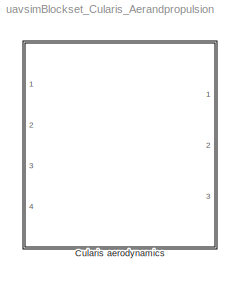
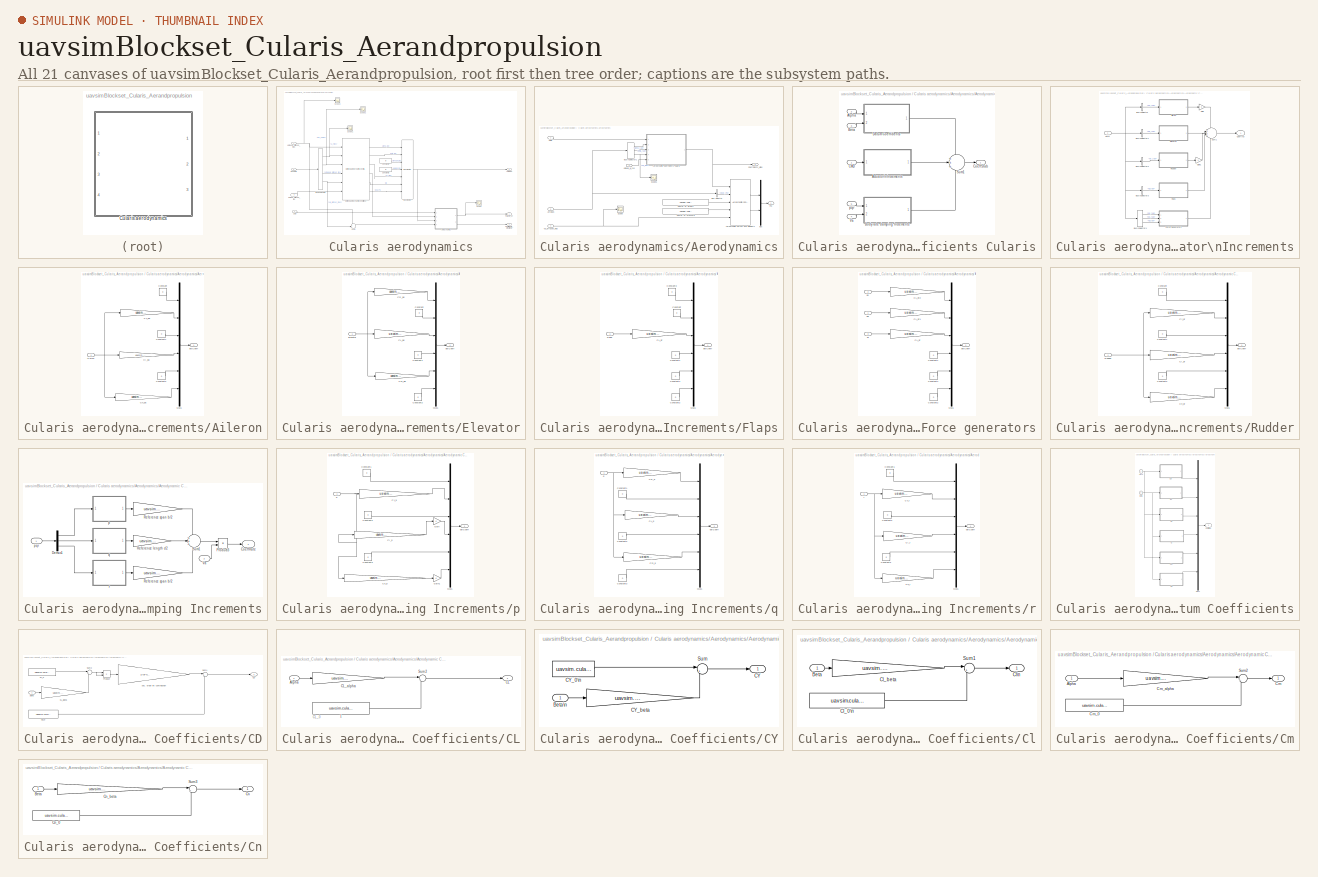
[diagram: thumbnail index - all 21 canvases of the model, root first then tree order]
MODEL uavsimBlockset_Cularis_Aerandpropulsion
KIND library
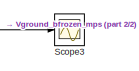
[diagram: Cularis aerodynamics - part 1/2, top left region]
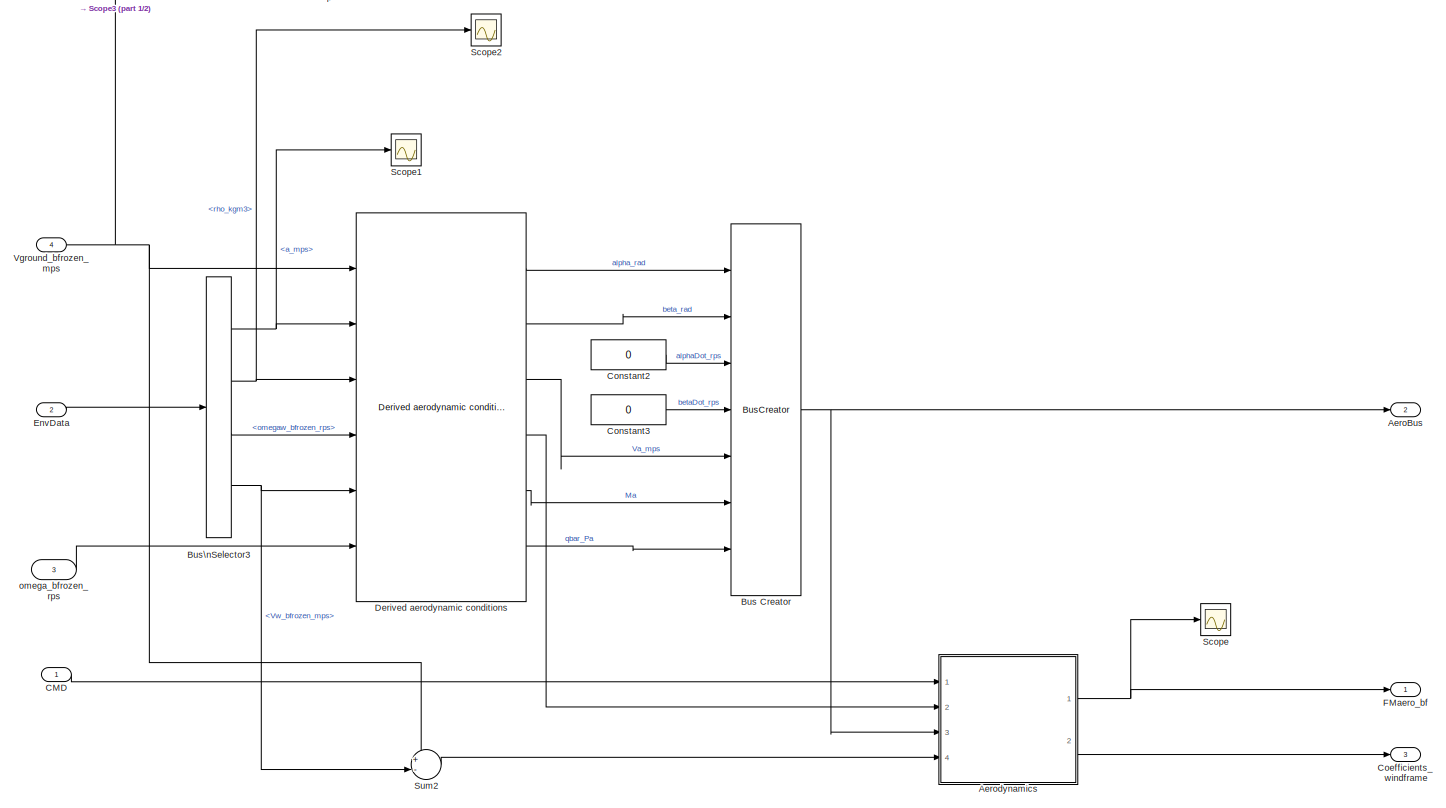
[diagram: Cularis aerodynamics - part 2/2, most of the canvas]
BLOCK [SubSystem] Cularis aerodynamics
  Ports = [4, 3]
  RequestExecContextInheritance = off
  SID = 4607
  Variant = off
BLOCK [Outport] Cularis aerodynamics/AeroBus
  IconDisplay = Port number
  OutDataTypeStr = Bus: Aero
  Port = 2
  SID = 4773
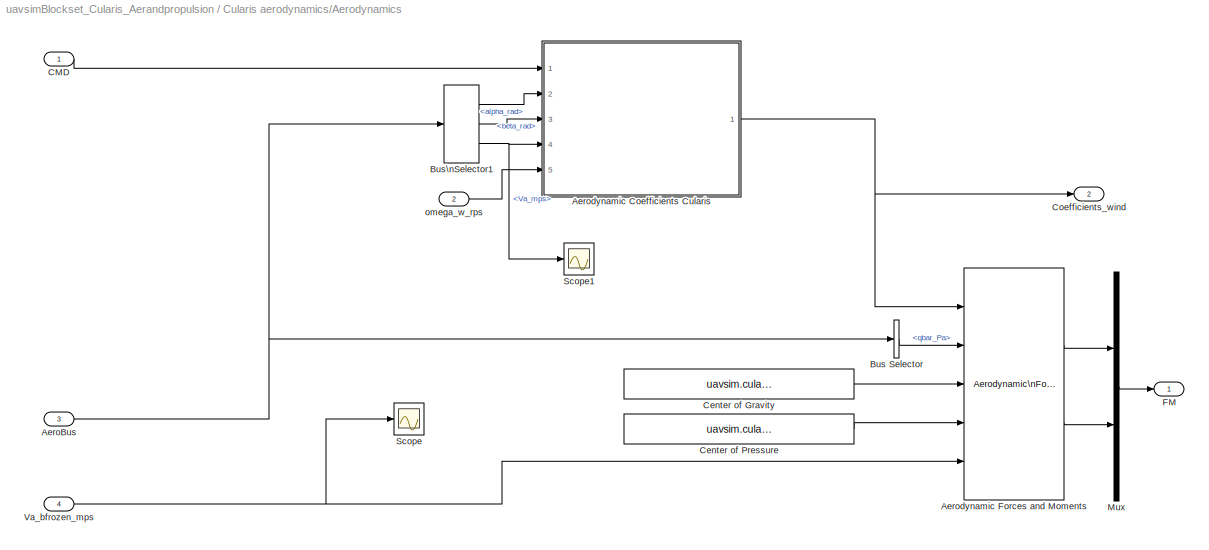
BLOCK [SubSystem] Cularis aerodynamics/Aerodynamics
  Ports = [4, 2]
  RequestExecContextInheritance = off
  SID = 4612
  Variant = off
BLOCK [Inport] Cularis aerodynamics/Aerodynamics/AeroBus
  IconDisplay = Port number
  OutDataTypeStr = Bus: Aero
  Port = 3
  SID = 4615
BLOCK [SubSystem] Cularis aerodynamics/Aerodynamics/Aerodynamic Coefficients Cularis
  Ports = [5, 1]
  RequestExecContextInheritance = off
  SID = 4617
  Variant = off
BLOCK [SubSystem] Cularis aerodynamics/Aerodynamics/Aerodynamic Coefficients Cularis/Actuator\nIncrements
  Ports = [1, 1]
  RequestExecContextInheritance = off
  SID = 4623
  Variant = off
BLOCK [SubSystem] Cularis aerodynamics/Aerodynamics/Aerodynamic Coefficients Cularis/Actuator\nIncrements/Aileron
  Ports = [1, 1]
  RequestExecContextInheritance = off
  SID = 4625
  Variant = off
BLOCK [Inport] Cularis aerodynamics/Aerodynamics/Aerodynamic Coefficients Cularis/Actuator\nIncrements/Aileron/Aileron
  IconDisplay = Port number
  SID = 4626
BLOCK [Gain] Cularis aerodynamics/Aerodynamics/Aerodynamic Coefficients Cularis/Actuator\nIncrements/Aileron/CY_da
  Gain = uavsim.cularis.CY_da
  OutDataTypeStr = Inherit: Inherit via internal rule
  ParamDataTypeStr = Inherit: Inherit via internal rule
  SID = 4627
  SaturateOnIntegerOverflow = off
BLOCK [Gain] Cularis aerodynamics/Aerodynamics/Aerodynamic Coefficients Cularis/Actuator\nIncrements/Aileron/Cl_da
  Gain = uavsim.cularis.Cl_da
  OutDataTypeStr = Inherit: Inherit via internal rule
  ParamDataTypeStr = Inherit: Inherit via internal rule
  SID = 4628
  SaturateOnIntegerOverflow = off
BLOCK [Gain] Cularis aerodynamics/Aerodynamics/Aerodynamic Coefficients Cularis/Actuator\nIncrements/Aileron/Cn_da
  Gain = uavsim.cularis.Cn_da
  OutDataTypeStr = Inherit: Inherit via internal rule
  ParamDataTypeStr = Inherit: Inherit via internal rule
  SID = 4629
  SaturateOnIntegerOverflow = off
BLOCK [Constant] Cularis aerodynamics/Aerodynamics/Aerodynamic Coefficients Cularis/Actuator\nIncrements/Aileron/Constant
  SID = 4630
  Value = 0
BLOCK [Constant] Cularis aerodynamics/Aerodynamics/Aerodynamic Coefficients Cularis/Actuator\nIncrements/Aileron/Constant1
  SID = 4631
  Value = 0
BLOCK [Constant] Cularis aerodynamics/Aerodynamics/Aerodynamic Coefficients Cularis/Actuator\nIncrements/Aileron/Constant2
  SID = 4632
  Value = 0
BLOCK [Mux] Cularis aerodynamics/Aerodynamics/Aerodynamic Coefficients Cularis/Actuator\nIncrements/Aileron/Mux1
  Inputs = 6
  Ports = [6, 1]
  SID = 4633
BLOCK [Outport] Cularis aerodynamics/Aerodynamics/Aerodynamic Coefficients Cularis/Actuator\nIncrements/Aileron/delCoeff
  IconDisplay = Port number
  SID = 4634
BLOCK [BusSelector] Cularis aerodynamics/Aerodynamics/Aerodynamic Coefficients Cularis/Actuator\nIncrements/Bus\nSelector
  OutputSignals = da_rad
  Ports = [1, 1]
  SID = 4635
BLOCK [BusSelector] Cularis aerodynamics/Aerodynamics/Aerodynamic Coefficients Cularis/Actuator\nIncrements/Bus\nSelector1
  OutputSignals = de_rad
  Ports = [1, 1]
  SID = 4636
BLOCK [BusSelector] Cularis aerodynamics/Aerodynamics/Aerodynamic Coefficients Cularis/Actuator\nIncrements/Bus\nSelector2
  OutputSignals = dr_rad
  Ports = [1, 1]
  SID = 4637
BLOCK [BusSelector] Cularis aerodynamics/Aerodynamics/Aerodynamic Coefficients Cularis/Actuator\nIncrements/Bus\nSelector3
  OutputSignals = df_rad
  Ports = [1, 1]
  SID = 4792
BLOCK [BusSelector] Cularis aerodynamics/Aerodynamics/Aerodynamic Coefficients Cularis/Actuator\nIncrements/Bus\nSelector4
  OutputSignals = dd_rad,ds_rad,df_rad
  Ports = [1, 3]
  SID = 4807
BLOCK [Inport] Cularis aerodynamics/Aerodynamics/Aerodynamic Coefficients Cularis/Actuator\nIncrements/CMD
  IconDisplay = Port number
  SID = 4624
BLOCK [Outport] Cularis aerodynamics/Aerodynamics/Aerodynamic Coefficients Cularis/Actuator\nIncrements/CoeffAct
  IconDisplay = Port number
  InitialOutput = 0
  SID = 4661
BLOCK [SubSystem] Cularis aerodynamics/Aerodynamics/Aerodynamic Coefficients Cularis/Actuator\nIncrements/Elevator
  Ports = [1, 1]
  RequestExecContextInheritance = off
  SID = 4638
  Variant = off
BLOCK [Gain] Cularis aerodynamics/Aerodynamics/Aerodynamic Coefficients Cularis/Actuator\nIncrements/Elevator/CD_de
  Gain = uavsim.cularis.CD_de
  OutDataTypeStr = Inherit: Inherit via internal rule
  ParamDataTypeStr = Inherit: Inherit via internal rule
  SID = 4640
  SaturateOnIntegerOverflow = off
BLOCK [Gain] Cularis aerodynamics/Aerodynamics/Aerodynamic Coefficients Cularis/Actuator\nIncrements/Elevator/CL_de
  Gain = uavsim.cularis.CL_de
  OutDataTypeStr = Inherit: Inherit via internal rule
  ParamDataTypeStr = Inherit: Inherit via internal rule
  SID = 4641
  SaturateOnIntegerOverflow = off
BLOCK [Gain] Cularis aerodynamics/Aerodynamics/Aerodynamic Coefficients Cularis/Actuator\nIncrements/Elevator/Cm_de
  Gain = uavsim.cularis.Cm_de
  OutDataTypeStr = Inherit: Inherit via internal rule
  ParamDataTypeStr = Inherit: Inherit via internal rule
  SID = 4642
  SaturateOnIntegerOverflow = off
BLOCK [Constant] Cularis aerodynamics/Aerodynamics/Aerodynamic Coefficients Cularis/Actuator\nIncrements/Elevator/Constant
  SID = 4643
  Value = 0
BLOCK [Constant] Cularis aerodynamics/Aerodynamics/Aerodynamic Coefficients Cularis/Actuator\nIncrements/Elevator/Constant1
  SID = 4644
  Value = 0
BLOCK [Constant] Cularis aerodynamics/Aerodynamics/Aerodynamic Coefficients Cularis/Actuator\nIncrements/Elevator/Constant2
  SID = 4645
  Value = 0
BLOCK [Inport] Cularis aerodynamics/Aerodynamics/Aerodynamic Coefficients Cularis/Actuator\nIncrements/Elevator/Elevator
  IconDisplay = Port number
  SID = 4639
BLOCK [Mux] Cularis aerodynamics/Aerodynamics/Aerodynamic Coefficients Cularis/Actuator\nIncrements/Elevator/Mux1
  Inputs = 6
  Ports = [6, 1]
  SID = 4646
BLOCK [Outport] Cularis aerodynamics/Aerodynamics/Aerodynamic Coefficients Cularis/Actuator\nIncrements/Elevator/delCoeff
  IconDisplay = Port number
  SID = 4647
BLOCK [SubSystem] Cularis aerodynamics/Aerodynamics/Aerodynamic Coefficients Cularis/Actuator\nIncrements/Flaps
  Ports = [1, 1]
  RequestExecContextInheritance = off
  SID = 4782
  Variant = off
BLOCK [Gain] Cularis aerodynamics/Aerodynamics/Aerodynamic Coefficients Cularis/Actuator\nIncrements/Flaps/CL_df
  Gain = uavsim.cularis.CL_df
  OutDataTypeStr = Inherit: Inherit via internal rule
  ParamDataTypeStr = Inherit: Inherit via internal rule
  SID = 4785
  SaturateOnIntegerOverflow = off
BLOCK [Constant] Cularis aerodynamics/Aerodynamics/Aerodynamic Coefficients Cularis/Actuator\nIncrements/Flaps/Constant
  SID = 4787
  Value = 0
BLOCK [Constant] Cularis aerodynamics/Aerodynamics/Aerodynamic Coefficients Cularis/Actuator\nIncrements/Flaps/Constant1
  SID = 4788
  Value = 0
BLOCK [Constant] Cularis aerodynamics/Aerodynamics/Aerodynamic Coefficients Cularis/Actuator\nIncrements/Flaps/Constant2
  SID = 4789
  Value = 0
BLOCK [Constant] Cularis aerodynamics/Aerodynamics/Aerodynamic Coefficients Cularis/Actuator\nIncrements/Flaps/Constant3
  SID = 4793
  Value = 0
BLOCK [Constant] Cularis aerodynamics/Aerodynamics/Aerodynamic Coefficients Cularis/Actuator\nIncrements/Flaps/Constant4
  SID = 4794
  Value = 0
BLOCK [Inport] Cularis aerodynamics/Aerodynamics/Aerodynamic Coefficients Cularis/Actuator\nIncrements/Flaps/Flaps
  IconDisplay = Port number
  SID = 4783
BLOCK [Mux] Cularis aerodynamics/Aerodynamics/Aerodynamic Coefficients Cularis/Actuator\nIncrements/Flaps/Mux1
  Inputs = 6
  Ports = [6, 1]
  SID = 4790
BLOCK [Outport] Cularis aerodynamics/Aerodynamics/Aerodynamic Coefficients Cularis/Actuator\nIncrements/Flaps/delCoeff
  IconDisplay = Port number
  SID = 4791
BLOCK [SubSystem] Cularis aerodynamics/Aerodynamics/Aerodynamic Coefficients Cularis/Actuator\nIncrements/Force generators
  Ports = [3, 1]
  RequestExecContextInheritance = off
  SID = 4797
  Variant = off
BLOCK [Gain] Cularis aerodynamics/Aerodynamics/Aerodynamic Coefficients Cularis/Actuator\nIncrements/Force generators/CL_df
  Gain = uavsim.cularis.CL_df
  OutDataTypeStr = Inherit: Inherit via internal rule
  ParamDataTypeStr = Inherit: Inherit via internal rule
  SID = 4799
  SaturateOnIntegerOverflow = off
BLOCK [Gain] Cularis aerodynamics/Aerodynamics/Aerodynamic Coefficients Cularis/Actuator\nIncrements/Force generators/CL_df1
  Gain = uavsim.cularis.CY_ds
  OutDataTypeStr = Inherit: Inherit via internal rule
  ParamDataTypeStr = Inherit: Inherit via internal rule
  SID = 4810
  SaturateOnIntegerOverflow = off
BLOCK [Gain] Cularis aerodynamics/Aerodynamics/Aerodynamic Coefficients Cularis/Actuator\nIncrements/Force generators/CL_df2
  Gain = uavsim.cularis.CD_dd
  OutDataTypeStr = Inherit: Inherit via internal rule
  ParamDataTypeStr = Inherit: Inherit via internal rule
  SID = 4811
  SaturateOnIntegerOverflow = off
BLOCK [Constant] Cularis aerodynamics/Aerodynamics/Aerodynamic Coefficients Cularis/Actuator\nIncrements/Force generators/Constant1
  SID = 4801
  Value = 0
BLOCK [Constant] Cularis aerodynamics/Aerodynamics/Aerodynamic Coefficients Cularis/Actuator\nIncrements/Force generators/Constant2
  SID = 4802
  Value = 0
BLOCK [Constant] Cularis aerodynamics/Aerodynamics/Aerodynamic Coefficients Cularis/Actuator\nIncrements/Force generators/Constant4
  SID = 4804
  Value = 0
BLOCK [Mux] Cularis aerodynamics/Aerodynamics/Aerodynamic Coefficients Cularis/Actuator\nIncrements/Force generators/Mux1
  Inputs = 6
  Ports = [6, 1]
  SID = 4805
BLOCK [Inport] Cularis aerodynamics/Aerodynamics/Aerodynamic Coefficients Cularis/Actuator\nIncrements/Force generators/dd
  IconDisplay = Port number
  SID = 4798
BLOCK [Outport] Cularis aerodynamics/Aerodynamics/Aerodynamic Coefficients Cularis/Actuator\nIncrements/Force generators/delCoeff
  IconDisplay = Port number
  SID = 4806
BLOCK [Inport] Cularis aerodynamics/Aerodynamics/Aerodynamic Coefficients Cularis/Actuator\nIncrements/Force generators/df
  IconDisplay = Port number
  Port = 3
  SID = 4809
BLOCK [Inport] Cularis aerodynamics/Aerodynamics/Aerodynamic Coefficients Cularis/Actuator\nIncrements/Force generators/ds
  IconDisplay = Port number
  Port = 2
  SID = 4808
BLOCK [Gain] Cularis aerodynamics/Aerodynamics/Aerodynamic Coefficients Cularis/Actuator\nIncrements/Gain
  OutDataTypeStr = Inherit: Inherit via internal rule
  ParamDataTypeStr = Inherit: Inherit via internal rule
  SID = 4648
  SaturateOnIntegerOverflow = off
BLOCK [Gain] Cularis aerodynamics/Aerodynamics/Aerodynamic Coefficients Cularis/Actuator\nIncrements/Gain1
  OutDataTypeStr = Inherit: Inherit via internal rule
  ParamDataTypeStr = Inherit: Inherit via internal rule
  SID = 4649
  SaturateOnIntegerOverflow = off
BLOCK [SubSystem] Cularis aerodynamics/Aerodynamics/Aerodynamic Coefficients Cularis/Actuator\nIncrements/Rudder
  Ports = [1, 1]
  RequestExecContextInheritance = off
  SID = 4650
  Variant = off
BLOCK [Gain] Cularis aerodynamics/Aerodynamics/Aerodynamic Coefficients Cularis/Actuator\nIncrements/Rudder/CY_dr
  Gain = uavsim.cularis.CY_dr
  OutDataTypeStr = Inherit: Inherit via internal rule
  ParamDataTypeStr = Inherit: Inherit via internal rule
  SID = 4652
  SaturateOnIntegerOverflow = off
BLOCK [Gain] Cularis aerodynamics/Aerodynamics/Aerodynamic Coefficients Cularis/Actuator\nIncrements/Rudder/Cl_dr
  Gain = uavsim.cularis.Cl_dr
  OutDataTypeStr = Inherit: Inherit via internal rule
  ParamDataTypeStr = Inherit: Inherit via internal rule
  SID = 4653
  SaturateOnIntegerOverflow = off
BLOCK [Gain] Cularis aerodynamics/Aerodynamics/Aerodynamic Coefficients Cularis/Actuator\nIncrements/Rudder/Cn_dr
  Gain = uavsim.cularis.Cn_dr
  OutDataTypeStr = Inherit: Inherit via internal rule
  ParamDataTypeStr = Inherit: Inherit via internal rule
  SID = 4654
  SaturateOnIntegerOverflow = off
BLOCK [Constant] Cularis aerodynamics/Aerodynamics/Aerodynamic Coefficients Cularis/Actuator\nIncrements/Rudder/Constant
  SID = 4655
  Value = 0
BLOCK [Constant] Cularis aerodynamics/Aerodynamics/Aerodynamic Coefficients Cularis/Actuator\nIncrements/Rudder/Constant1
  SID = 4656
  Value = 0
BLOCK [Constant] Cularis aerodynamics/Aerodynamics/Aerodynamic Coefficients Cularis/Actuator\nIncrements/Rudder/Constant2
  SID = 4657
  Value = 0
BLOCK [Mux] Cularis aerodynamics/Aerodynamics/Aerodynamic Coefficients Cularis/Actuator\nIncrements/Rudder/Mux1
  Inputs = 6
  Ports = [6, 1]
  SID = 4658
BLOCK [Inport] Cularis aerodynamics/Aerodynamics/Aerodynamic Coefficients Cularis/Actuator\nIncrements/Rudder/Rudder
  IconDisplay = Port number
  SID = 4651
BLOCK [Outport] Cularis aerodynamics/Aerodynamics/Aerodynamic Coefficients Cularis/Actuator\nIncrements/Rudder/delCoeff
  IconDisplay = Port number
  SID = 4659
BLOCK [Sum] Cularis aerodynamics/Aerodynamics/Aerodynamic Coefficients Cularis/Actuator\nIncrements/Sum1
  IconShape = round
  Inputs = +++++
  Ports = [5, 1]
  SID = 4660
BLOCK [Inport] Cularis aerodynamics/Aerodynamics/Aerodynamic Coefficients Cularis/Alpha
  IconDisplay = Port number
  Port = 2
  SID = 4619
BLOCK [Inport] Cularis aerodynamics/Aerodynamics/Aerodynamic Coefficients Cularis/Beta
  IconDisplay = Port number
  Port = 3
  SID = 4620
BLOCK [SubSystem] Cularis aerodynamics/Aerodynamics/Aerodynamic Coefficients Cularis/Body rate damping Increments
  Ports = [2, 1]
  RequestExecContextInheritance = off
  SID = 4662
  Variant = off
BLOCK [Outport] Cularis aerodynamics/Aerodynamics/Aerodynamic Coefficients Cularis/Body rate damping Increments/CoeffRate
  IconDisplay = Port number
  InitialOutput = 0
  SID = 4703
BLOCK [Demux] Cularis aerodynamics/Aerodynamics/Aerodynamic Coefficients Cularis/Body rate damping Increments/Demux1
  Outputs = 3
  Ports = [1, 3]
  SID = 4665
BLOCK [Product] Cularis aerodynamics/Aerodynamics/Aerodynamic Coefficients Cularis/Body rate damping Increments/Product3
  Inputs = */
  Ports = [2, 1]
  RndMeth = Floor
  SID = 4666
BLOCK [Gain] Cularis aerodynamics/Aerodynamics/Aerodynamic Coefficients Cularis/Body rate damping Increments/Reference length c//2
  Gain = uavsim.cularis.c/2
  OutDataTypeStr = Inherit: Inherit via internal rule
  ParamDataTypeStr = Inherit: Inherit via internal rule
  SID = 4667
  SaturateOnIntegerOverflow = off
BLOCK [Gain] Cularis aerodynamics/Aerodynamics/Aerodynamic Coefficients Cularis/Body rate damping Increments/Reference span b//2
  Gain = uavsim.cularis.b/2
  OutDataTypeStr = Inherit: Inherit via internal rule
  ParamDataTypeStr = Inherit: Inherit via internal rule
  SID = 4668
  SaturateOnIntegerOverflow = off
BLOCK [Gain] Cularis aerodynamics/Aerodynamics/Aerodynamic Coefficients Cularis/Body rate damping Increments/Reference span b//2 
  Gain = uavsim.cularis.b/2
  OutDataTypeStr = Inherit: Inherit via internal rule
  ParamDataTypeStr = Inherit: Inherit via internal rule
  SID = 4669
  SaturateOnIntegerOverflow = off
BLOCK [Sum] Cularis aerodynamics/Aerodynamics/Aerodynamic Coefficients Cularis/Body rate damping Increments/Sum1
  IconShape = round
  Inputs = +++
  Ports = [3, 1]
  SID = 4670
BLOCK [Inport] Cularis aerodynamics/Aerodynamics/Aerodynamic Coefficients Cularis/Body rate damping Increments/Va
  IconDisplay = Port number
  Port = 2
  SID = 4664
BLOCK [SubSystem] Cularis aerodynamics/Aerodynamics/Aerodynamic Coefficients Cularis/Body rate damping Increments/p
  Ports = [1, 1]
  RequestExecContextInheritance = off
  SID = 4671
  Variant = off
BLOCK [Gain] Cularis aerodynamics/Aerodynamics/Aerodynamic Coefficients Cularis/Body rate damping Increments/p/CY_p
  Gain = uavsim.cularis.CY_p
  OutDataTypeStr = Inherit: Inherit via internal rule
  ParamDataTypeStr = Inherit: Inherit via internal rule
  SID = 4673
  SaturateOnIntegerOverflow = off
BLOCK [Gain] Cularis aerodynamics/Aerodynamics/Aerodynamic Coefficients Cularis/Body rate damping Increments/p/Cl_p
  Gain = uavsim.cularis.Cl_p
  OutDataTypeStr = Inherit: Inherit via internal rule
  ParamDataTypeStr = Inherit: Inherit via internal rule
  SID = 4674
  SaturateOnIntegerOverflow = off
BLOCK [Gain] Cularis aerodynamics/Aerodynamics/Aerodynamic Coefficients Cularis/Body rate damping Increments/p/Cn_p
  Gain = uavsim.cularis.Cn_p
  OutDataTypeStr = Inherit: Inherit via internal rule
  ParamDataTypeStr = Inherit: Inherit via internal rule
  SID = 4675
  SaturateOnIntegerOverflow = off
BLOCK [Constant] Cularis aerodynamics/Aerodynamics/Aerodynamic Coefficients Cularis/Body rate damping Increments/p/Constant1
  SID = 4676
  Value = 0
BLOCK [Constant] Cularis aerodynamics/Aerodynamics/Aerodynamic Coefficients Cularis/Body rate damping Increments/p/Constant2
  SID = 4677
  Value = 0
BLOCK [Constant] Cularis aerodynamics/Aerodynamics/Aerodynamic Coefficients Cularis/Body rate damping Increments/p/Constant3
  SID = 4678
  Value = 0
BLOCK [Gain] Cularis aerodynamics/Aerodynamics/Aerodynamic Coefficients Cularis/Body rate damping Increments/p/Gain
  OutDataTypeStr = Inherit: Inherit via internal rule
  ParamDataTypeStr = Inherit: Inherit via internal rule
  SID = 4679
  SaturateOnIntegerOverflow = off
BLOCK [Gain] Cularis aerodynamics/Aerodynamics/Aerodynamic Coefficients Cularis/Body rate damping Increments/p/Gain1
  OutDataTypeStr = Inherit: Inherit via internal rule
  ParamDataTypeStr = Inherit: Inherit via internal rule
  SID = 4680
  SaturateOnIntegerOverflow = off
BLOCK [Mux] Cularis aerodynamics/Aerodynamics/Aerodynamic Coefficients Cularis/Body rate damping Increments/p/Mux1
  Inputs = 6
  Ports = [6, 1]
  SID = 4681
BLOCK [Outport] Cularis aerodynamics/Aerodynamics/Aerodynamic Coefficients Cularis/Body rate damping Increments/p/delCoeff
  IconDisplay = Port number
  SID = 4682
BLOCK [Inport] Cularis aerodynamics/Aerodynamics/Aerodynamic Coefficients Cularis/Body rate damping Increments/p/p
  IconDisplay = Port number
  SID = 4672
BLOCK [Inport] Cularis aerodynamics/Aerodynamics/Aerodynamic Coefficients Cularis/Body rate damping Increments/pqr
  IconDisplay = Port number
  SID = 4663
BLOCK [SubSystem] Cularis aerodynamics/Aerodynamics/Aerodynamic Coefficients Cularis/Body rate damping Increments/q
  Ports = [1, 1]
  RequestExecContextInheritance = off
  SID = 4683
  Variant = off
BLOCK [Gain] Cularis aerodynamics/Aerodynamics/Aerodynamic Coefficients Cularis/Body rate damping Increments/q/CD_q
  Gain = uavsim.cularis.CD_q
  OutDataTypeStr = Inherit: Inherit via internal rule
  ParamDataTypeStr = Inherit: Inherit via internal rule
  SID = 4685
  SaturateOnIntegerOverflow = off
BLOCK [Gain] Cularis aerodynamics/Aerodynamics/Aerodynamic Coefficients Cularis/Body rate damping Increments/q/CL_q
  Gain = uavsim.cularis.CL_q
  OutDataTypeStr = Inherit: Inherit via internal rule
  ParamDataTypeStr = Inherit: Inherit via internal rule
  SID = 4686
  SaturateOnIntegerOverflow = off
BLOCK [Gain] Cularis aerodynamics/Aerodynamics/Aerodynamic Coefficients Cularis/Body rate damping Increments/q/Cm_q
  Gain = uavsim.cularis.Cm_q
  OutDataTypeStr = Inherit: Inherit via internal rule
  ParamDataTypeStr = Inherit: Inherit via internal rule
  SID = 4687
  SaturateOnIntegerOverflow = off
BLOCK [Constant] Cularis aerodynamics/Aerodynamics/Aerodynamic Coefficients Cularis/Body rate damping Increments/q/Constant1
  SID = 4688
  Value = 0
BLOCK [Constant] Cularis aerodynamics/Aerodynamics/Aerodynamic Coefficients Cularis/Body rate damping Increments/q/Constant2
  SID = 4689
  Value = 0
BLOCK [Constant] Cularis aerodynamics/Aerodynamics/Aerodynamic Coefficients Cularis/Body rate damping Increments/q/Constant3
  SID = 4690
  Value = 0
BLOCK [Mux] Cularis aerodynamics/Aerodynamics/Aerodynamic Coefficients Cularis/Body rate damping Increments/q/Mux1
  Inputs = 6
  Ports = [6, 1]
  SID = 4691
BLOCK [Outport] Cularis aerodynamics/Aerodynamics/Aerodynamic Coefficients Cularis/Body rate damping Increments/q/delCoeff
  IconDisplay = Port number
  SID = 4692
BLOCK [Inport] Cularis aerodynamics/Aerodynamics/Aerodynamic Coefficients Cularis/Body rate damping Increments/q/q
  IconDisplay = Port number
  SID = 4684
BLOCK [SubSystem] Cularis aerodynamics/Aerodynamics/Aerodynamic Coefficients Cularis/Body rate damping Increments/r
  Ports = [1, 1]
  RequestExecContextInheritance = off
  SID = 4693
  Variant = off
BLOCK [Gain] Cularis aerodynamics/Aerodynamics/Aerodynamic Coefficients Cularis/Body rate damping Increments/r/CY_r
  Gain = uavsim.cularis.CY_r
  OutDataTypeStr = Inherit: Inherit via internal rule
  ParamDataTypeStr = Inherit: Inherit via internal rule
  SID = 4695
  SaturateOnIntegerOverflow = off
BLOCK [Gain] Cularis aerodynamics/Aerodynamics/Aerodynamic Coefficients Cularis/Body rate damping Increments/r/Cl_r
  Gain = uavsim.cularis.Cl_r
  OutDataTypeStr = Inherit: Inherit via internal rule
  ParamDataTypeStr = Inherit: Inherit via internal rule
  SID = 4696
  SaturateOnIntegerOverflow = off
BLOCK [Gain] Cularis aerodynamics/Aerodynamics/Aerodynamic Coefficients Cularis/Body rate damping Increments/r/Cn_r
  Gain = uavsim.cularis.Cn_r
  OutDataTypeStr = Inherit: Inherit via internal rule
  ParamDataTypeStr = Inherit: Inherit via internal rule
  SID = 4697
  SaturateOnIntegerOverflow = off
BLOCK [Constant] Cularis aerodynamics/Aerodynamics/Aerodynamic Coefficients Cularis/Body rate damping Increments/r/Constant1
  SID = 4698
  Value = 0
BLOCK [Constant] Cularis aerodynamics/Aerodynamics/Aerodynamic Coefficients Cularis/Body rate damping Increments/r/Constant2
  SID = 4699
  Value = 0
BLOCK [Constant] Cularis aerodynamics/Aerodynamics/Aerodynamic Coefficients Cularis/Body rate damping Increments/r/Constant3
  SID = 4700
  Value = 0
BLOCK [Mux] Cularis aerodynamics/Aerodynamics/Aerodynamic Coefficients Cularis/Body rate damping Increments/r/Mux1
  Inputs = 6
  Ports = [6, 1]
  SID = 4701
BLOCK [Outport] Cularis aerodynamics/Aerodynamics/Aerodynamic Coefficients Cularis/Body rate damping Increments/r/delCoeff
  IconDisplay = Port number
  SID = 4702
BLOCK [Inport] Cularis aerodynamics/Aerodynamics/Aerodynamic Coefficients Cularis/Body rate damping Increments/r/r
  IconDisplay = Port number
  SID = 4694
BLOCK [Inport] Cularis aerodynamics/Aerodynamics/Aerodynamic Coefficients Cularis/CMD
  IconDisplay = Port number
  SID = 4618
BLOCK [Outport] Cularis aerodynamics/Aerodynamics/Aerodynamic Coefficients Cularis/CoeffStab
  IconDisplay = Port number
  SID = 4751
BLOCK [SubSystem] Cularis aerodynamics/Aerodynamics/Aerodynamic Coefficients Cularis/Datum Coefficients
  Ports = [2, 1]
  RequestExecContextInheritance = off
  SID = 4704
  Variant = off
BLOCK [Inport] Cularis aerodynamics/Aerodynamics/Aerodynamic Coefficients Cularis/Datum Coefficients/Alpha
  IconDisplay = Port number
  SID = 4705
BLOCK [Inport] Cularis aerodynamics/Aerodynamics/Aerodynamic Coefficients Cularis/Datum Coefficients/Beta
  IconDisplay = Port number
  Port = 2
  SID = 4706
BLOCK [SubSystem] Cularis aerodynamics/Aerodynamics/Aerodynamic Coefficients Cularis/Datum Coefficients/CD
  Ports = [1, 1]
  RequestExecContextInheritance = off
  SID = 4707
  Variant = off
BLOCK [Inport] Cularis aerodynamics/Aerodynamics/Aerodynamic Coefficients Cularis/Datum Coefficients/CD/Alpha
  IconDisplay = Port number
  SID = 4708
BLOCK [Outport] Cularis aerodynamics/Aerodynamics/Aerodynamic Coefficients Cularis/Datum Coefficients/CD/CD
  IconDisplay = Port number
  SID = 4716
BLOCK [Constant] Cularis aerodynamics/Aerodynamics/Aerodynamic Coefficients Cularis/Datum Coefficients/CD/CD_0
  SID = 4709
  Value = uavsim.cularis.CD_0
BLOCK [Constant] Cularis aerodynamics/Aerodynamics/Aerodynamic Coefficients Cularis/Datum Coefficients/CD/CL_0
  SID = 4710
  Value = uavsim.cularis.CL_0
BLOCK [Gain] Cularis aerodynamics/Aerodynamics/Aerodynamic Coefficients Cularis/Datum Coefficients/CD/CL_alpha
  Gain = uavsim.cularis.CL_alpha
  OutDataTypeStr = Inherit: Inherit via internal rule
  ParamDataTypeStr = Inherit: Inherit via internal rule
  SID = 4711
  SaturateOnIntegerOverflow = off
BLOCK [Product] Cularis aerodynamics/Aerodynamics/Aerodynamic Coefficients Cularis/Datum Coefficients/CD/Product
  InputSameDT = off
  OutDataTypeStr = Inherit: Inherit via internal rule
  Ports = [2, 1]
  SID = 4712
  SaturateOnIntegerOverflow = off
BLOCK [Sum] Cularis aerodynamics/Aerodynamics/Aerodynamic Coefficients Cularis/Datum Coefficients/CD/Sum1
  IconShape = round
  InputSameDT = off
  Inputs = |++
  OutDataTypeStr = Inherit: Inherit via internal rule
  Ports = [2, 1]
  SID = 4713
  SaturateOnIntegerOverflow = off
BLOCK [Sum] Cularis aerodynamics/Aerodynamics/Aerodynamic Coefficients Cularis/Datum Coefficients/CD/Sum2
  IconShape = round
  InputSameDT = off
  Inputs = |++
  OutDataTypeStr = Inherit: Inherit via internal rule
  Ports = [2, 1]
  SID = 4714
  SaturateOnIntegerOverflow = off
BLOCK [Gain] Cularis aerodynamics/Aerodynamics/Aerodynamic Coefficients Cularis/Datum Coefficients/CD/sec. order lift contribution
  Gain = 1/(pi*uavsim.cularis.oswald*uavsim.cularis.AR )
  OutDataTypeStr = Inherit: Inherit via internal rule
  ParamDataTypeStr = Inherit: Inherit via internal rule
  SID = 4715
  SaturateOnIntegerOverflow = off
BLOCK [SubSystem] Cularis aerodynamics/Aerodynamics/Aerodynamic Coefficients Cularis/Datum Coefficients/CL
  Ports = [1, 1]
  RequestExecContextInheritance = off
  SID = 4717
  Variant = off
BLOCK [Constant] Cularis aerodynamics/Aerodynamics/Aerodynamic Coefficients Cularis/Datum Coefficients/CL/1
  SID = 4719
  Value = uavsim.cularis.CL_0
BLOCK [Inport] Cularis aerodynamics/Aerodynamics/Aerodynamic Coefficients Cularis/Datum Coefficients/CL/Alpha
  IconDisplay = Port number
  SID = 4718
BLOCK [Outport] Cularis aerodynamics/Aerodynamics/Aerodynamic Coefficients Cularis/Datum Coefficients/CL/CL
  IconDisplay = Port number
  SID = 4722
BLOCK [Gain] Cularis aerodynamics/Aerodynamics/Aerodynamic Coefficients Cularis/Datum Coefficients/CL/CL_alpha
  Gain = uavsim.cularis.CL_alpha
  OutDataTypeStr = Inherit: Inherit via internal rule
  ParamDataTypeStr = Inherit: Inherit via internal rule
  SID = 4720
  SaturateOnIntegerOverflow = off
BLOCK [Sum] Cularis aerodynamics/Aerodynamics/Aerodynamic Coefficients Cularis/Datum Coefficients/CL/Sum2
  IconShape = round
  InputSameDT = off
  Inputs = |++
  OutDataTypeStr = Inherit: Inherit via internal rule
  Ports = [2, 1]
  SID = 4721
  SaturateOnIntegerOverflow = off
BLOCK [SubSystem] Cularis aerodynamics/Aerodynamics/Aerodynamic Coefficients Cularis/Datum Coefficients/CY
  Ports = [1, 1]
  RequestExecContextInheritance = off
  SID = 4724
  Variant = off
BLOCK [Inport] Cularis aerodynamics/Aerodynamics/Aerodynamic Coefficients Cularis/Datum Coefficients/CY/Beta\n
  IconDisplay = Port number
  SID = 4725
BLOCK [Outport] Cularis aerodynamics/Aerodynamics/Aerodynamic Coefficients Cularis/Datum Coefficients/CY/CY
  IconDisplay = Port number
  SID = 4729
BLOCK [Constant] Cularis aerodynamics/Aerodynamics/Aerodynamic Coefficients Cularis/Datum Coefficients/CY/CY_0\n
  SID = 4726
  Value = uavsim.cularis.CY_0
BLOCK [Gain] Cularis aerodynamics/Aerodynamics/Aerodynamic Coefficients Cularis/Datum Coefficients/CY/CY_beta
  Gain = uavsim.cularis.CY_beta
  SID = 4727
BLOCK [Sum] Cularis aerodynamics/Aerodynamics/Aerodynamic Coefficients Cularis/Datum Coefficients/CY/Sum
  IconShape = round
  InputSameDT = off
  Inputs = |++
  OutDataTypeStr = Inherit: Inherit via internal rule
  Ports = [2, 1]
  SID = 4728
  SaturateOnIntegerOverflow = off
BLOCK [SubSystem] Cularis aerodynamics/Aerodynamics/Aerodynamic Coefficients Cularis/Datum Coefficients/Cl
  Ports = [1, 1]
  RequestExecContextInheritance = off
  SID = 4730
  Variant = off
BLOCK [Inport] Cularis aerodynamics/Aerodynamics/Aerodynamic Coefficients Cularis/Datum Coefficients/Cl/Beta
  IconDisplay = Port number
  SID = 4731
BLOCK [Outport] Cularis aerodynamics/Aerodynamics/Aerodynamic Coefficients Cularis/Datum Coefficients/Cl/Cl\n
  IconDisplay = Port number
  SID = 4735
BLOCK [Constant] Cularis aerodynamics/Aerodynamics/Aerodynamic Coefficients Cularis/Datum Coefficients/Cl/Cl_0\n
  SID = 4732
  Value = uavsim.cularis.Cl_0
BLOCK [Gain] Cularis aerodynamics/Aerodynamics/Aerodynamic Coefficients Cularis/Datum Coefficients/Cl/Cl_beta
  Gain = uavsim.cularis.Cl_beta
  SID = 4733
BLOCK [Sum] Cularis aerodynamics/Aerodynamics/Aerodynamic Coefficients Cularis/Datum Coefficients/Cl/Sum1
  IconShape = round
  InputSameDT = off
  Inputs = |++
  OutDataTypeStr = Inherit: Inherit via internal rule
  Ports = [2, 1]
  SID = 4734
  SaturateOnIntegerOverflow = off
BLOCK [SubSystem] Cularis aerodynamics/Aerodynamics/Aerodynamic Coefficients Cularis/Datum Coefficients/Cm
  Ports = [1, 1]
  RequestExecContextInheritance = off
  SID = 4736
  Variant = off
BLOCK [Inport] Cularis aerodynamics/Aerodynamics/Aerodynamic Coefficients Cularis/Datum Coefficients/Cm/Alpha
  IconDisplay = Port number
  SID = 4737
BLOCK [Outport] Cularis aerodynamics/Aerodynamics/Aerodynamic Coefficients Cularis/Datum Coefficients/Cm/Cm
  IconDisplay = Port number
  SID = 4741
BLOCK [Constant] Cularis aerodynamics/Aerodynamics/Aerodynamic Coefficients Cularis/Datum Coefficients/Cm/Cm_0
  SID = 4738
  Value = uavsim.cularis.Cm_0
BLOCK [Gain] Cularis aerodynamics/Aerodynamics/Aerodynamic Coefficients Cularis/Datum Coefficients/Cm/Cm_alpha
  Gain = uavsim.cularis.Cm_alpha
  SID = 4739
BLOCK [Sum] Cularis aerodynamics/Aerodynamics/Aerodynamic Coefficients Cularis/Datum Coefficients/Cm/Sum2
  IconShape = round
  InputSameDT = off
  Inputs = |++
  OutDataTypeStr = Inherit: Inherit via internal rule
  Ports = [2, 1]
  SID = 4740
  SaturateOnIntegerOverflow = off
BLOCK [SubSystem] Cularis aerodynamics/Aerodynamics/Aerodynamic Coefficients Cularis/Datum Coefficients/Cn
  Ports = [1, 1]
  RequestExecContextInheritance = off
  SID = 4742
  Variant = off
BLOCK [Inport] Cularis aerodynamics/Aerodynamics/Aerodynamic Coefficients Cularis/Datum Coefficients/Cn/Beta
  IconDisplay = Port number
  SID = 4743
BLOCK [Outport] Cularis aerodynamics/Aerodynamics/Aerodynamic Coefficients Cularis/Datum Coefficients/Cn/Cn
  IconDisplay = Port number
  SID = 4747
BLOCK [Constant] Cularis aerodynamics/Aerodynamics/Aerodynamic Coefficients Cularis/Datum Coefficients/Cn/Cn_0
  SID = 4744
  Value = uavsim.cularis.Cn_0
BLOCK [Gain] Cularis aerodynamics/Aerodynamics/Aerodynamic Coefficients Cularis/Datum Coefficients/Cn/Cn_beta
  Gain = uavsim.cularis.Cn_beta
  SID = 4745
BLOCK [Sum] Cularis aerodynamics/Aerodynamics/Aerodynamic Coefficients Cularis/Datum Coefficients/Cn/Sum3
  IconShape = round
  InputSameDT = off
  Inputs = |++
  OutDataTypeStr = Inherit: Inherit via internal rule
  Ports = [2, 1]
  SID = 4746
  SaturateOnIntegerOverflow = off
BLOCK [Outport] Cularis aerodynamics/Aerodynamics/Aerodynamic Coefficients Cularis/Datum Coefficients/CoeffDat
  IconDisplay = Port number
  InitialOutput = 0
  SID = 4749
BLOCK [Mux] Cularis aerodynamics/Aerodynamics/Aerodynamic Coefficients Cularis/Datum Coefficients/Mux1
  Inputs = 6
  Ports = [6, 1]
  SID = 4748
BLOCK [Sum] Cularis aerodynamics/Aerodynamics/Aerodynamic Coefficients Cularis/Sum1
  IconShape = round
  Inputs = +++
  Ports = [3, 1]
  SID = 4750
BLOCK [Inport] Cularis aerodynamics/Aerodynamics/Aerodynamic Coefficients Cularis/Va
  IconDisplay = Port number
  Port = 4
  SID = 4621
BLOCK [Inport] Cularis aerodynamics/Aerodynamics/Aerodynamic Coefficients Cularis/pqr
  IconDisplay = Port number
  Port = 5
  SID = 4622
BLOCK [Reference] Cularis aerodynamics/Aerodynamics/Aerodynamic Forces and Moments   REF=aerolibadyn/Aerodynamic\nForces and Moments 
  Ports = [5, 2]
  S = uavsim.cularis.S
  SID = 4752
  SourceBlock = aerolibadyn/Aerodynamic\nForces and Moments
  SourceType = Aerodynamic Forces and Moments
  b = uavsim.cularis.b
  cbar = uavsim.cularis.c
  inputAxes = Wind
  outputForceAxes = Body
  outputMomentAxes = Body
BLOCK [BusSelector] Cularis aerodynamics/Aerodynamics/Bus Selector
  OutputSignals = qbar_Pa
  Ports = [1, 1]
  SID = 4754
BLOCK [BusSelector] Cularis aerodynamics/Aerodynamics/Bus\nSelector1
  OutputSignals = alpha_rad,beta_rad,Va_mps
  Ports = [1, 3]
  SID = 4753
BLOCK [Inport] Cularis aerodynamics/Aerodynamics/CMD
  IconDisplay = Port number
  OutDataTypeStr = Bus: CMD
  SID = 4613
BLOCK [Constant] Cularis aerodynamics/Aerodynamics/Center of Gravity
  SID = 4755
  SampleTime = 0
  Value = uavsim.cularis.centerOfGravity_b_m
BLOCK [Constant] Cularis aerodynamics/Aerodynamics/Center of Pressure
  SID = 4756
  SampleTime = 0
  Value = uavsim.cularis.aerodynamicCenter_b_m
BLOCK [Outport] Cularis aerodynamics/Aerodynamics/Coefficients_wind
  IconDisplay = Port number
  Port = 2
  SID = 4761
BLOCK [Outport] Cularis aerodynamics/Aerodynamics/FM
  IconDisplay = Port number
  SID = 4760
BLOCK [Mux] Cularis aerodynamics/Aerodynamics/Mux
  DisplayOption = bar
  Inputs = 2
  Ports = [2, 1]
  SID = 4757
BLOCK [Scope] Cularis aerodynamics/Aerodynamics/Scope
  NumInputPorts = 1
  Ports = [1]
  SID = 4758
  ScopeSpecificationString = C++SS(StrPVP('Location','[188, 365, 512, 604]'),StrPVP('Open','off'),MxPVP('AxesTitles',24,'struct(''axes1'',''%<SignalLabel>'')'),StrPVP('ShowLegends','off'),StrPVP('SaveName','ScopeData2'),StrPVP('ScrollMode','off'),StrPVP('LimitDataPoints','on'),StrPVP('DataFormat','Array'),StrPVP('Decimation','1'),StrPVP('BlockParamSampleInput','off'))
BLOCK [Scope] Cularis aerodynamics/Aerodynamics/Scope1
  NumInputPorts = 1
  Ports = [1]
  SID = 4759
  ScopeSpecificationString = C++SS(StrPVP('Location','[188, 365, 512, 604]'),StrPVP('Open','off'),MxPVP('AxesTitles',24,'struct(''axes1'',''%<SignalLabel>'')'),MxPVP('ScopeGraphics',28,'struct(''FigureColor'',''[0.5 0.5 0.5]'',''AxesColor'',''[0 0 0]'',''AxesTickColor'',''[1 1 1]'',''LineColors'',''[1 1 0;1 0 1;0 1 1;1 0 0;0 1 0;0 0 1]'',''LineStyles'',''-|-|-|-|-|-'',''LineWidths'',''[0.5 0.5 0.5 0.5 0.5 0.5]'',''MarkerStyle...<+251ch>  <repeated x4 — deduplicated; at blocks: Scope1, Scope2, Scope3>
BLOCK [Inport] Cularis aerodynamics/Aerodynamics/Va_bfrozen_mps
  IconDisplay = Port number
  Port = 4
  SID = 4616
BLOCK [Inport] Cularis aerodynamics/Aerodynamics/omega_w_rps
  IconDisplay = Port number
  Port = 2
  SID = 4614
BLOCK [BusCreator] Cularis aerodynamics/Bus Creator
  DisplayOption = bar
  InheritFromInputs = on
  Inputs = 7
  Ports = [7, 1]
  SID = 4763
BLOCK [BusSelector] Cularis aerodynamics/Bus\nSelector3
  OutputSignals = a_mps,rho_kgm3,omegaw_bfrozen_rps,Vw_bfrozen_mps
  Ports = [1, 4]
  SID = 4762
BLOCK [Inport] Cularis aerodynamics/CMD
  IconDisplay = Port number
  OutDataTypeStr = Bus: CMD
  SID = 4608
BLOCK [Outport] Cularis aerodynamics/Coefficients_windframe
  IconDisplay = Port number
  Port = 3
  SID = 4774
BLOCK [Constant] Cularis aerodynamics/Constant2
  SID = 4764
  Value = 0
BLOCK [Constant] Cularis aerodynamics/Constant3
  SID = 4765
  Value = 0
BLOCK [Reference] Cularis aerodynamics/Derived aerodynamic conditions  REF=uavsimBlockset_DerivedAerodynamicConditions/Derived aerodynamic conditions
  Ports = [6, 6]
  SID = 4766
  SourceBlock = uavsimBlockset_DerivedAerodynamicConditions/Derived aerodynamic conditions
  SourceType = SubSystem
BLOCK [Inport] Cularis aerodynamics/EnvData
  IconDisplay = Port number
  OutDataTypeStr = Bus: Environment
  Port = 2
  SID = 4609
BLOCK [Outport] Cularis aerodynamics/FMaero_bf
  IconDisplay = Port number
  SID = 4772
BLOCK [Scope] Cularis aerodynamics/Scope
  NumInputPorts = 1
  Ports = [1]
  SID = 4767
  ScopeSpecificationString = C++SS(StrPVP('Location','[1, 50, 1921, 1047]'),StrPVP('Open','off'),MxPVP('AxesTitles',24,'struct(''axes1'',''%<SignalLabel>'')'),MxPVP('ScopeGraphics',28,'struct(''FigureColor'',''[0.5 0.5 0.5]'',''AxesColor'',''[0 0 0]'',''AxesTickColor'',''[1 1 1]'',''LineColors'',''[1 1 0;1 0 1;0 1 1;1 0 0;0 1 0;0 0 1]'',''LineStyles'',''-|-|-|-|-|-'',''LineWidths'',''[0.5 0.5 0.5 0.5 0.5 0.5]'',''MarkerStyles...<+250ch>
BLOCK [Scope] Cularis aerodynamics/Scope1
  NumInputPorts = 1
  Ports = [1]
  SID = 4768
BLOCK [Scope] Cularis aerodynamics/Scope2
  NumInputPorts = 1
  Ports = [1]
  SID = 4769
BLOCK [Scope] Cularis aerodynamics/Scope3
  NumInputPorts = 1
  Ports = [1]
  SID = 4770
BLOCK [Sum] Cularis aerodynamics/Sum2
  IconShape = round
  Inputs = +-|
  Ports = [2, 1]
  SID = 4771
BLOCK [Inport] Cularis aerodynamics/Vground_bfrozen_mps
  IconDisplay = Port number
  Port = 4
  SID = 4611
BLOCK [Inport] Cularis aerodynamics/omega_bfrozen_rps
  IconDisplay = Port number
  Port = 3
  SID = 4610
ANNOTATION Cularis aerodynamics/Aerodynamics/Aerodynamic Coefficients Cularis/Datum Coefficients/CL: CL_0
NET Cularis aerodynamics/Aerodynamics/AeroBus:1 -> Cularis aerodynamics/Aerodynamics/Bus Selector:1, Cularis aerodynamics/Aerodynamics/Bus\nSelector1:1
NET Cularis aerodynamics/Aerodynamics/Aerodynamic Coefficients Cularis/Actuator\nIncrements/Aileron/Aileron:1 -> Cularis aerodynamics/Aerodynamics/Aerodynamic Coefficients Cularis/Actuator\nIncrements/Aileron/CY_da:1, Cularis aerodynamics/Aerodynamics/Aerodynamic Coefficients Cularis/Actuator\nIncrements/Aileron/Cl_da:1, Cularis aerodynamics/Aerodynamics/Aerodynamic Coefficients Cularis/Actuator\nIncrements/Aileron/Cn_da:1
LINE Cularis aerodynamics/Aerodynamics/Aerodynamic Coefficients Cularis/Actuator\nIncrements/Aileron/CY_da:1 -> Cularis aerodynamics/Aerodynamics/Aerodynamic Coefficients Cularis/Actuator\nIncrements/Aileron/Mux1:2
LINE Cularis aerodynamics/Aerodynamics/Aerodynamic Coefficients Cularis/Actuator\nIncrements/Aileron/Cl_da:1 -> Cularis aerodynamics/Aerodynamics/Aerodynamic Coefficients Cularis/Actuator\nIncrements/Aileron/Mux1:4
LINE Cularis aerodynamics/Aerodynamics/Aerodynamic Coefficients Cularis/Actuator\nIncrements/Aileron/Cn_da:1 -> Cularis aerodynamics/Aerodynamics/Aerodynamic Coefficients Cularis/Actuator\nIncrements/Aileron/Mux1:6
LINE Cularis aerodynamics/Aerodynamics/Aerodynamic Coefficients Cularis/Actuator\nIncrements/Aileron/Constant1:1 -> Cularis aerodynamics/Aerodynamics/Aerodynamic Coefficients Cularis/Actuator\nIncrements/Aileron/Mux1:3
LINE Cularis aerodynamics/Aerodynamics/Aerodynamic Coefficients Cularis/Actuator\nIncrements/Aileron/Constant2:1 -> Cularis aerodynamics/Aerodynamics/Aerodynamic Coefficients Cularis/Actuator\nIncrements/Aileron/Mux1:5
LINE Cularis aerodynamics/Aerodynamics/Aerodynamic Coefficients Cularis/Actuator\nIncrements/Aileron/Constant:1 -> Cularis aerodynamics/Aerodynamics/Aerodynamic Coefficients Cularis/Actuator\nIncrements/Aileron/Mux1:1
LINE Cularis aerodynamics/Aerodynamics/Aerodynamic Coefficients Cularis/Actuator\nIncrements/Aileron/Mux1:1 -> Cularis aerodynamics/Aerodynamics/Aerodynamic Coefficients Cularis/Actuator\nIncrements/Aileron/delCoeff:1
LINE Cularis aerodynamics/Aerodynamics/Aerodynamic Coefficients Cularis/Actuator\nIncrements/Aileron:1 -> Cularis aerodynamics/Aerodynamics/Aerodynamic Coefficients Cularis/Actuator\nIncrements/Gain:1
LINE Cularis aerodynamics/Aerodynamics/Aerodynamic Coefficients Cularis/Actuator\nIncrements/Bus\nSelector1:1 -> Cularis aerodynamics/Aerodynamics/Aerodynamic Coefficients Cularis/Actuator\nIncrements/Elevator:1
LINE Cularis aerodynamics/Aerodynamics/Aerodynamic Coefficients Cularis/Actuator\nIncrements/Bus\nSelector2:1 -> Cularis aerodynamics/Aerodynamics/Aerodynamic Coefficients Cularis/Actuator\nIncrements/Rudder:1
LINE Cularis aerodynamics/Aerodynamics/Aerodynamic Coefficients Cularis/Actuator\nIncrements/Bus\nSelector3:1 -> Cularis aerodynamics/Aerodynamics/Aerodynamic Coefficients Cularis/Actuator\nIncrements/Flaps:1
LINE Cularis aerodynamics/Aerodynamics/Aerodynamic Coefficients Cularis/Actuator\nIncrements/Bus\nSelector4:1 -> Cularis aerodynamics/Aerodynamics/Aerodynamic Coefficients Cularis/Actuator\nIncrements/Force generators:1
LINE Cularis aerodynamics/Aerodynamics/Aerodynamic Coefficients Cularis/Actuator\nIncrements/Bus\nSelector4:2 -> Cularis aerodynamics/Aerodynamics/Aerodynamic Coefficients Cularis/Actuator\nIncrements/Force generators:2
LINE Cularis aerodynamics/Aerodynamics/Aerodynamic Coefficients Cularis/Actuator\nIncrements/Bus\nSelector4:3 -> Cularis aerodynamics/Aerodynamics/Aerodynamic Coefficients Cularis/Actuator\nIncrements/Force generators:3
LINE Cularis aerodynamics/Aerodynamics/Aerodynamic Coefficients Cularis/Actuator\nIncrements/Bus\nSelector:1 -> Cularis aerodynamics/Aerodynamics/Aerodynamic Coefficients Cularis/Actuator\nIncrements/Aileron:1
NET Cularis aerodynamics/Aerodynamics/Aerodynamic Coefficients Cularis/Actuator\nIncrements/CMD:1 -> Cularis aerodynamics/Aerodynamics/Aerodynamic Coefficients Cularis/Actuator\nIncrements/Bus\nSelector1:1, Cularis aerodynamics/Aerodynamics/Aerodynamic Coefficients Cularis/Actuator\nIncrements/Bus\nSelector2:1, Cularis aerodynamics/Aerodynamics/Aerodynamic Coefficients Cularis/Actuator\nIncrements/Bus\nSelector3:1, Cularis aerodynamics/Aerodynamics/Aerodynamic Coefficients Cularis/Actuator\nIncrements/Bus\nSelector4:1, Cularis aerodynamics/Aerodynamics/Aerodynamic Coefficients Cularis/Actuator\nIncrements/Bus\nSelector:1
LINE Cularis aerodynamics/Aerodynamics/Aerodynamic Coefficients Cularis/Actuator\nIncrements/Elevator/CD_de:1 -> Cularis aerodynamics/Aerodynamics/Aerodynamic Coefficients Cularis/Actuator\nIncrements/Elevator/Mux1:1
LINE Cularis aerodynamics/Aerodynamics/Aerodynamic Coefficients Cularis/Actuator\nIncrements/Elevator/CL_de:1 -> Cularis aerodynamics/Aerodynamics/Aerodynamic Coefficients Cularis/Actuator\nIncrements/Elevator/Mux1:3
LINE Cularis aerodynamics/Aerodynamics/Aerodynamic Coefficients Cularis/Actuator\nIncrements/Elevator/Cm_de:1 -> Cularis aerodynamics/Aerodynamics/Aerodynamic Coefficients Cularis/Actuator\nIncrements/Elevator/Mux1:5
LINE Cularis aerodynamics/Aerodynamics/Aerodynamic Coefficients Cularis/Actuator\nIncrements/Elevator/Constant1:1 -> Cularis aerodynamics/Aerodynamics/Aerodynamic Coefficients Cularis/Actuator\nIncrements/Elevator/Mux1:4
LINE Cularis aerodynamics/Aerodynamics/Aerodynamic Coefficients Cularis/Actuator\nIncrements/Elevator/Constant2:1 -> Cularis aerodynamics/Aerodynamics/Aerodynamic Coefficients Cularis/Actuator\nIncrements/Elevator/Mux1:6
LINE Cularis aerodynamics/Aerodynamics/Aerodynamic Coefficients Cularis/Actuator\nIncrements/Elevator/Constant:1 -> Cularis aerodynamics/Aerodynamics/Aerodynamic Coefficients Cularis/Actuator\nIncrements/Elevator/Mux1:2
NET Cularis aerodynamics/Aerodynamics/Aerodynamic Coefficients Cularis/Actuator\nIncrements/Elevator/Elevator:1 -> Cularis aerodynamics/Aerodynamics/Aerodynamic Coefficients Cularis/Actuator\nIncrements/Elevator/CD_de:1, Cularis aerodynamics/Aerodynamics/Aerodynamic Coefficients Cularis/Actuator\nIncrements/Elevator/CL_de:1, Cularis aerodynamics/Aerodynamics/Aerodynamic Coefficients Cularis/Actuator\nIncrements/Elevator/Cm_de:1
LINE Cularis aerodynamics/Aerodynamics/Aerodynamic Coefficients Cularis/Actuator\nIncrements/Elevator/Mux1:1 -> Cularis aerodynamics/Aerodynamics/Aerodynamic Coefficients Cularis/Actuator\nIncrements/Elevator/delCoeff:1
LINE Cularis aerodynamics/Aerodynamics/Aerodynamic Coefficients Cularis/Actuator\nIncrements/Elevator:1 -> Cularis aerodynamics/Aerodynamics/Aerodynamic Coefficients Cularis/Actuator\nIncrements/Sum1:2
LINE Cularis aerodynamics/Aerodynamics/Aerodynamic Coefficients Cularis/Actuator\nIncrements/Flaps/CL_df:1 -> Cularis aerodynamics/Aerodynamics/Aerodynamic Coefficients Cularis/Actuator\nIncrements/Flaps/Mux1:3
LINE Cularis aerodynamics/Aerodynamics/Aerodynamic Coefficients Cularis/Actuator\nIncrements/Flaps/Constant1:1 -> Cularis aerodynamics/Aerodynamics/Aerodynamic Coefficients Cularis/Actuator\nIncrements/Flaps/Mux1:4
LINE Cularis aerodynamics/Aerodynamics/Aerodynamic Coefficients Cularis/Actuator\nIncrements/Flaps/Constant2:1 -> Cularis aerodynamics/Aerodynamics/Aerodynamic Coefficients Cularis/Actuator\nIncrements/Flaps/Mux1:6
LINE Cularis aerodynamics/Aerodynamics/Aerodynamic Coefficients Cularis/Actuator\nIncrements/Flaps/Constant3:1 -> Cularis aerodynamics/Aerodynamics/Aerodynamic Coefficients Cularis/Actuator\nIncrements/Flaps/Mux1:1
LINE Cularis aerodynamics/Aerodynamics/Aerodynamic Coefficients Cularis/Actuator\nIncrements/Flaps/Constant4:1 -> Cularis aerodynamics/Aerodynamics/Aerodynamic Coefficients Cularis/Actuator\nIncrements/Flaps/Mux1:5
LINE Cularis aerodynamics/Aerodynamics/Aerodynamic Coefficients Cularis/Actuator\nIncrements/Flaps/Constant:1 -> Cularis aerodynamics/Aerodynamics/Aerodynamic Coefficients Cularis/Actuator\nIncrements/Flaps/Mux1:2
LINE Cularis aerodynamics/Aerodynamics/Aerodynamic Coefficients Cularis/Actuator\nIncrements/Flaps/Flaps:1 -> Cularis aerodynamics/Aerodynamics/Aerodynamic Coefficients Cularis/Actuator\nIncrements/Flaps/CL_df:1
LINE Cularis aerodynamics/Aerodynamics/Aerodynamic Coefficients Cularis/Actuator\nIncrements/Flaps/Mux1:1 -> Cularis aerodynamics/Aerodynamics/Aerodynamic Coefficients Cularis/Actuator\nIncrements/Flaps/delCoeff:1
LINE Cularis aerodynamics/Aerodynamics/Aerodynamic Coefficients Cularis/Actuator\nIncrements/Flaps:1 -> Cularis aerodynamics/Aerodynamics/Aerodynamic Coefficients Cularis/Actuator\nIncrements/Sum1:4
LINE Cularis aerodynamics/Aerodynamics/Aerodynamic Coefficients Cularis/Actuator\nIncrements/Force generators/CL_df1:1 -> Cularis aerodynamics/Aerodynamics/Aerodynamic Coefficients Cularis/Actuator\nIncrements/Force generators/Mux1:2
LINE Cularis aerodynamics/Aerodynamics/Aerodynamic Coefficients Cularis/Actuator\nIncrements/Force generators/CL_df2:1 -> Cularis aerodynamics/Aerodynamics/Aerodynamic Coefficients Cularis/Actuator\nIncrements/Force generators/Mux1:1
LINE Cularis aerodynamics/Aerodynamics/Aerodynamic Coefficients Cularis/Actuator\nIncrements/Force generators/CL_df:1 -> Cularis aerodynamics/Aerodynamics/Aerodynamic Coefficients Cularis/Actuator\nIncrements/Force generators/Mux1:3
LINE Cularis aerodynamics/Aerodynamics/Aerodynamic Coefficients Cularis/Actuator\nIncrements/Force generators/Constant1:1 -> Cularis aerodynamics/Aerodynamics/Aerodynamic Coefficients Cularis/Actuator\nIncrements/Force generators/Mux1:4
LINE Cularis aerodynamics/Aerodynamics/Aerodynamic Coefficients Cularis/Actuator\nIncrements/Force generators/Constant2:1 -> Cularis aerodynamics/Aerodynamics/Aerodynamic Coefficients Cularis/Actuator\nIncrements/Force generators/Mux1:6
LINE Cularis aerodynamics/Aerodynamics/Aerodynamic Coefficients Cularis/Actuator\nIncrements/Force generators/Constant4:1 -> Cularis aerodynamics/Aerodynamics/Aerodynamic Coefficients Cularis/Actuator\nIncrements/Force generators/Mux1:5
LINE Cularis aerodynamics/Aerodynamics/Aerodynamic Coefficients Cularis/Actuator\nIncrements/Force generators/Mux1:1 -> Cularis aerodynamics/Aerodynamics/Aerodynamic Coefficients Cularis/Actuator\nIncrements/Force generators/delCoeff:1
LINE Cularis aerodynamics/Aerodynamics/Aerodynamic Coefficients Cularis/Actuator\nIncrements/Force generators/dd:1 -> Cularis aerodynamics/Aerodynamics/Aerodynamic Coefficients Cularis/Actuator\nIncrements/Force generators/CL_df1:1
LINE Cularis aerodynamics/Aerodynamics/Aerodynamic Coefficients Cularis/Actuator\nIncrements/Force generators/df:1 -> Cularis aerodynamics/Aerodynamics/Aerodynamic Coefficients Cularis/Actuator\nIncrements/Force generators/CL_df:1
LINE Cularis aerodynamics/Aerodynamics/Aerodynamic Coefficients Cularis/Actuator\nIncrements/Force generators/ds:1 -> Cularis aerodynamics/Aerodynamics/Aerodynamic Coefficients Cularis/Actuator\nIncrements/Force generators/CL_df2:1
LINE Cularis aerodynamics/Aerodynamics/Aerodynamic Coefficients Cularis/Actuator\nIncrements/Force generators:1 -> Cularis aerodynamics/Aerodynamics/Aerodynamic Coefficients Cularis/Actuator\nIncrements/Sum1:5
LINE Cularis aerodynamics/Aerodynamics/Aerodynamic Coefficients Cularis/Actuator\nIncrements/Gain1:1 -> Cularis aerodynamics/Aerodynamics/Aerodynamic Coefficients Cularis/Actuator\nIncrements/Sum1:3
LINE Cularis aerodynamics/Aerodynamics/Aerodynamic Coefficients Cularis/Actuator\nIncrements/Gain:1 -> Cularis aerodynamics/Aerodynamics/Aerodynamic Coefficients Cularis/Actuator\nIncrements/Sum1:1
LINE Cularis aerodynamics/Aerodynamics/Aerodynamic Coefficients Cularis/Actuator\nIncrements/Rudder/CY_dr:1 -> Cularis aerodynamics/Aerodynamics/Aerodynamic Coefficients Cularis/Actuator\nIncrements/Rudder/Mux1:2
LINE Cularis aerodynamics/Aerodynamics/Aerodynamic Coefficients Cularis/Actuator\nIncrements/Rudder/Cl_dr:1 -> Cularis aerodynamics/Aerodynamics/Aerodynamic Coefficients Cularis/Actuator\nIncrements/Rudder/Mux1:4
LINE Cularis aerodynamics/Aerodynamics/Aerodynamic Coefficients Cularis/Actuator\nIncrements/Rudder/Cn_dr:1 -> Cularis aerodynamics/Aerodynamics/Aerodynamic Coefficients Cularis/Actuator\nIncrements/Rudder/Mux1:6
LINE Cularis aerodynamics/Aerodynamics/Aerodynamic Coefficients Cularis/Actuator\nIncrements/Rudder/Constant1:1 -> Cularis aerodynamics/Aerodynamics/Aerodynamic Coefficients Cularis/Actuator\nIncrements/Rudder/Mux1:3
LINE Cularis aerodynamics/Aerodynamics/Aerodynamic Coefficients Cularis/Actuator\nIncrements/Rudder/Constant2:1 -> Cularis aerodynamics/Aerodynamics/Aerodynamic Coefficients Cularis/Actuator\nIncrements/Rudder/Mux1:5
LINE Cularis aerodynamics/Aerodynamics/Aerodynamic Coefficients Cularis/Actuator\nIncrements/Rudder/Constant:1 -> Cularis aerodynamics/Aerodynamics/Aerodynamic Coefficients Cularis/Actuator\nIncrements/Rudder/Mux1:1
LINE Cularis aerodynamics/Aerodynamics/Aerodynamic Coefficients Cularis/Actuator\nIncrements/Rudder/Mux1:1 -> Cularis aerodynamics/Aerodynamics/Aerodynamic Coefficients Cularis/Actuator\nIncrements/Rudder/delCoeff:1
NET Cularis aerodynamics/Aerodynamics/Aerodynamic Coefficients Cularis/Actuator\nIncrements/Rudder/Rudder:1 -> Cularis aerodynamics/Aerodynamics/Aerodynamic Coefficients Cularis/Actuator\nIncrements/Rudder/CY_dr:1, Cularis aerodynamics/Aerodynamics/Aerodynamic Coefficients Cularis/Actuator\nIncrements/Rudder/Cl_dr:1, Cularis aerodynamics/Aerodynamics/Aerodynamic Coefficients Cularis/Actuator\nIncrements/Rudder/Cn_dr:1
LINE Cularis aerodynamics/Aerodynamics/Aerodynamic Coefficients Cularis/Actuator\nIncrements/Rudder:1 -> Cularis aerodynamics/Aerodynamics/Aerodynamic Coefficients Cularis/Actuator\nIncrements/Gain1:1
LINE Cularis aerodynamics/Aerodynamics/Aerodynamic Coefficients Cularis/Actuator\nIncrements/Sum1:1 -> Cularis aerodynamics/Aerodynamics/Aerodynamic Coefficients Cularis/Actuator\nIncrements/CoeffAct:1
LINE Cularis aerodynamics/Aerodynamics/Aerodynamic Coefficients Cularis/Actuator\nIncrements:1 -> Cularis aerodynamics/Aerodynamics/Aerodynamic Coefficients Cularis/Sum1:2
LINE Cularis aerodynamics/Aerodynamics/Aerodynamic Coefficients Cularis/Alpha:1 -> Cularis aerodynamics/Aerodynamics/Aerodynamic Coefficients Cularis/Datum Coefficients:1
LINE Cularis aerodynamics/Aerodynamics/Aerodynamic Coefficients Cularis/Beta:1 -> Cularis aerodynamics/Aerodynamics/Aerodynamic Coefficients Cularis/Datum Coefficients:2
LINE Cularis aerodynamics/Aerodynamics/Aerodynamic Coefficients Cularis/Body rate damping Increments/Demux1:1 -> Cularis aerodynamics/Aerodynamics/Aerodynamic Coefficients Cularis/Body rate damping Increments/p:1
LINE Cularis aerodynamics/Aerodynamics/Aerodynamic Coefficients Cularis/Body rate damping Increments/Demux1:2 -> Cularis aerodynamics/Aerodynamics/Aerodynamic Coefficients Cularis/Body rate damping Increments/q:1
LINE Cularis aerodynamics/Aerodynamics/Aerodynamic Coefficients Cularis/Body rate damping Increments/Demux1:3 -> Cularis aerodynamics/Aerodynamics/Aerodynamic Coefficients Cularis/Body rate damping Increments/r:1
LINE Cularis aerodynamics/Aerodynamics/Aerodynamic Coefficients Cularis/Body rate damping Increments/Product3:1 -> Cularis aerodynamics/Aerodynamics/Aerodynamic Coefficients Cularis/Body rate damping Increments/CoeffRate:1
LINE Cularis aerodynamics/Aerodynamics/Aerodynamic Coefficients Cularis/Body rate damping Increments/Reference length c//2:1 -> Cularis aerodynamics/Aerodynamics/Aerodynamic Coefficients Cularis/Body rate damping Increments/Sum1:2
LINE Cularis aerodynamics/Aerodynamics/Aerodynamic Coefficients Cularis/Body rate damping Increments/Reference span b//2 :1 -> Cularis aerodynamics/Aerodynamics/Aerodynamic Coefficients Cularis/Body rate damping Increments/Sum1:1
LINE Cularis aerodynamics/Aerodynamics/Aerodynamic Coefficients Cularis/Body rate damping Increments/Reference span b//2:1 -> Cularis aerodynamics/Aerodynamics/Aerodynamic Coefficients Cularis/Body rate damping Increments/Sum1:3
LINE Cularis aerodynamics/Aerodynamics/Aerodynamic Coefficients Cularis/Body rate damping Increments/Sum1:1 -> Cularis aerodynamics/Aerodynamics/Aerodynamic Coefficients Cularis/Body rate damping Increments/Product3:1
LINE Cularis aerodynamics/Aerodynamics/Aerodynamic Coefficients Cularis/Body rate damping Increments/Va:1 -> Cularis aerodynamics/Aerodynamics/Aerodynamic Coefficients Cularis/Body rate damping Increments/Product3:2
LINE Cularis aerodynamics/Aerodynamics/Aerodynamic Coefficients Cularis/Body rate damping Increments/p/CY_p:1 -> Cularis aerodynamics/Aerodynamics/Aerodynamic Coefficients Cularis/Body rate damping Increments/p/Mux1:2
LINE Cularis aerodynamics/Aerodynamics/Aerodynamic Coefficients Cularis/Body rate damping Increments/p/Cl_p:1 -> Cularis aerodynamics/Aerodynamics/Aerodynamic Coefficients Cularis/Body rate damping Increments/p/Gain:1
LINE Cularis aerodynamics/Aerodynamics/Aerodynamic Coefficients Cularis/Body rate damping Increments/p/Cn_p:1 -> Cularis aerodynamics/Aerodynamics/Aerodynamic Coefficients Cularis/Body rate damping Increments/p/Gain1:1
LINE Cularis aerodynamics/Aerodynamics/Aerodynamic Coefficients Cularis/Body rate damping Increments/p/Constant1:1 -> Cularis aerodynamics/Aerodynamics/Aerodynamic Coefficients Cularis/Body rate damping Increments/p/Mux1:1
LINE Cularis aerodynamics/Aerodynamics/Aerodynamic Coefficients Cularis/Body rate damping Increments/p/Constant2:1 -> Cularis aerodynamics/Aerodynamics/Aerodynamic Coefficients Cularis/Body rate damping Increments/p/Mux1:3
LINE Cularis aerodynamics/Aerodynamics/Aerodynamic Coefficients Cularis/Body rate damping Increments/p/Constant3:1 -> Cularis aerodynamics/Aerodynamics/Aerodynamic Coefficients Cularis/Body rate damping Increments/p/Mux1:5
LINE Cularis aerodynamics/Aerodynamics/Aerodynamic Coefficients Cularis/Body rate damping Increments/p/Gain1:1 -> Cularis aerodynamics/Aerodynamics/Aerodynamic Coefficients Cularis/Body rate damping Increments/p/Mux1:6
LINE Cularis aerodynamics/Aerodynamics/Aerodynamic Coefficients Cularis/Body rate damping Increments/p/Gain:1 -> Cularis aerodynamics/Aerodynamics/Aerodynamic Coefficients Cularis/Body rate damping Increments/p/Mux1:4
LINE Cularis aerodynamics/Aerodynamics/Aerodynamic Coefficients Cularis/Body rate damping Increments/p/Mux1:1 -> Cularis aerodynamics/Aerodynamics/Aerodynamic Coefficients Cularis/Body rate damping Increments/p/delCoeff:1
NET Cularis aerodynamics/Aerodynamics/Aerodynamic Coefficients Cularis/Body rate damping Increments/p/p:1 -> Cularis aerodynamics/Aerodynamics/Aerodynamic Coefficients Cularis/Body rate damping Increments/p/CY_p:1, Cularis aerodynamics/Aerodynamics/Aerodynamic Coefficients Cularis/Body rate damping Increments/p/Cl_p:1, Cularis aerodynamics/Aerodynamics/Aerodynamic Coefficients Cularis/Body rate damping Increments/p/Cn_p:1
LINE Cularis aerodynamics/Aerodynamics/Aerodynamic Coefficients Cularis/Body rate damping Increments/p:1 -> Cularis aerodynamics/Aerodynamics/Aerodynamic Coefficients Cularis/Body rate damping Increments/Reference span b//2 :1
LINE Cularis aerodynamics/Aerodynamics/Aerodynamic Coefficients Cularis/Body rate damping Increments/pqr:1 -> Cularis aerodynamics/Aerodynamics/Aerodynamic Coefficients Cularis/Body rate damping Increments/Demux1:1
LINE Cularis aerodynamics/Aerodynamics/Aerodynamic Coefficients Cularis/Body rate damping Increments/q/CD_q:1 -> Cularis aerodynamics/Aerodynamics/Aerodynamic Coefficients Cularis/Body rate damping Increments/q/Mux1:1
LINE Cularis aerodynamics/Aerodynamics/Aerodynamic Coefficients Cularis/Body rate damping Increments/q/CL_q:1 -> Cularis aerodynamics/Aerodynamics/Aerodynamic Coefficients Cularis/Body rate damping Increments/q/Mux1:3
LINE Cularis aerodynamics/Aerodynamics/Aerodynamic Coefficients Cularis/Body rate damping Increments/q/Cm_q:1 -> Cularis aerodynamics/Aerodynamics/Aerodynamic Coefficients Cularis/Body rate damping Increments/q/Mux1:5
LINE Cularis aerodynamics/Aerodynamics/Aerodynamic Coefficients Cularis/Body rate damping Increments/q/Constant1:1 -> Cularis aerodynamics/Aerodynamics/Aerodynamic Coefficients Cularis/Body rate damping Increments/q/Mux1:2
LINE Cularis aerodynamics/Aerodynamics/Aerodynamic Coefficients Cularis/Body rate damping Increments/q/Constant2:1 -> Cularis aerodynamics/Aerodynamics/Aerodynamic Coefficients Cularis/Body rate damping Increments/q/Mux1:4
LINE Cularis aerodynamics/Aerodynamics/Aerodynamic Coefficients Cularis/Body rate damping Increments/q/Constant3:1 -> Cularis aerodynamics/Aerodynamics/Aerodynamic Coefficients Cularis/Body rate damping Increments/q/Mux1:6
LINE Cularis aerodynamics/Aerodynamics/Aerodynamic Coefficients Cularis/Body rate damping Increments/q/Mux1:1 -> Cularis aerodynamics/Aerodynamics/Aerodynamic Coefficients Cularis/Body rate damping Increments/q/delCoeff:1
NET Cularis aerodynamics/Aerodynamics/Aerodynamic Coefficients Cularis/Body rate damping Increments/q/q:1 -> Cularis aerodynamics/Aerodynamics/Aerodynamic Coefficients Cularis/Body rate damping Increments/q/CD_q:1, Cularis aerodynamics/Aerodynamics/Aerodynamic Coefficients Cularis/Body rate damping Increments/q/CL_q:1, Cularis aerodynamics/Aerodynamics/Aerodynamic Coefficients Cularis/Body rate damping Increments/q/Cm_q:1
LINE Cularis aerodynamics/Aerodynamics/Aerodynamic Coefficients Cularis/Body rate damping Increments/q:1 -> Cularis aerodynamics/Aerodynamics/Aerodynamic Coefficients Cularis/Body rate damping Increments/Reference length c//2:1
LINE Cularis aerodynamics/Aerodynamics/Aerodynamic Coefficients Cularis/Body rate damping Increments/r/CY_r:1 -> Cularis aerodynamics/Aerodynamics/Aerodynamic Coefficients Cularis/Body rate damping Increments/r/Mux1:2
LINE Cularis aerodynamics/Aerodynamics/Aerodynamic Coefficients Cularis/Body rate damping Increments/r/Cl_r:1 -> Cularis aerodynamics/Aerodynamics/Aerodynamic Coefficients Cularis/Body rate damping Increments/r/Mux1:4
LINE Cularis aerodynamics/Aerodynamics/Aerodynamic Coefficients Cularis/Body rate damping Increments/r/Cn_r:1 -> Cularis aerodynamics/Aerodynamics/Aerodynamic Coefficients Cularis/Body rate damping Increments/r/Mux1:6
LINE Cularis aerodynamics/Aerodynamics/Aerodynamic Coefficients Cularis/Body rate damping Increments/r/Constant1:1 -> Cularis aerodynamics/Aerodynamics/Aerodynamic Coefficients Cularis/Body rate damping Increments/r/Mux1:1
LINE Cularis aerodynamics/Aerodynamics/Aerodynamic Coefficients Cularis/Body rate damping Increments/r/Constant2:1 -> Cularis aerodynamics/Aerodynamics/Aerodynamic Coefficients Cularis/Body rate damping Increments/r/Mux1:3
LINE Cularis aerodynamics/Aerodynamics/Aerodynamic Coefficients Cularis/Body rate damping Increments/r/Constant3:1 -> Cularis aerodynamics/Aerodynamics/Aerodynamic Coefficients Cularis/Body rate damping Increments/r/Mux1:5
LINE Cularis aerodynamics/Aerodynamics/Aerodynamic Coefficients Cularis/Body rate damping Increments/r/Mux1:1 -> Cularis aerodynamics/Aerodynamics/Aerodynamic Coefficients Cularis/Body rate damping Increments/r/delCoeff:1
NET Cularis aerodynamics/Aerodynamics/Aerodynamic Coefficients Cularis/Body rate damping Increments/r/r:1 -> Cularis aerodynamics/Aerodynamics/Aerodynamic Coefficients Cularis/Body rate damping Increments/r/CY_r:1, Cularis aerodynamics/Aerodynamics/Aerodynamic Coefficients Cularis/Body rate damping Increments/r/Cl_r:1, Cularis aerodynamics/Aerodynamics/Aerodynamic Coefficients Cularis/Body rate damping Increments/r/Cn_r:1
LINE Cularis aerodynamics/Aerodynamics/Aerodynamic Coefficients Cularis/Body rate damping Increments/r:1 -> Cularis aerodynamics/Aerodynamics/Aerodynamic Coefficients Cularis/Body rate damping Increments/Reference span b//2:1
LINE Cularis aerodynamics/Aerodynamics/Aerodynamic Coefficients Cularis/Body rate damping Increments:1 -> Cularis aerodynamics/Aerodynamics/Aerodynamic Coefficients Cularis/Sum1:3
LINE Cularis aerodynamics/Aerodynamics/Aerodynamic Coefficients Cularis/CMD:1 -> Cularis aerodynamics/Aerodynamics/Aerodynamic Coefficients Cularis/Actuator\nIncrements:1
NET Cularis aerodynamics/Aerodynamics/Aerodynamic Coefficients Cularis/Datum Coefficients/Alpha:1 -> Cularis aerodynamics/Aerodynamics/Aerodynamic Coefficients Cularis/Datum Coefficients/CD:1, Cularis aerodynamics/Aerodynamics/Aerodynamic Coefficients Cularis/Datum Coefficients/CL:1, Cularis aerodynamics/Aerodynamics/Aerodynamic Coefficients Cularis/Datum Coefficients/Cm:1
NET Cularis aerodynamics/Aerodynamics/Aerodynamic Coefficients Cularis/Datum Coefficients/Beta:1 -> Cularis aerodynamics/Aerodynamics/Aerodynamic Coefficients Cularis/Datum Coefficients/CY:1, Cularis aerodynamics/Aerodynamics/Aerodynamic Coefficients Cularis/Datum Coefficients/Cl:1, Cularis aerodynamics/Aerodynamics/Aerodynamic Coefficients Cularis/Datum Coefficients/Cn:1
LINE Cularis aerodynamics/Aerodynamics/Aerodynamic Coefficients Cularis/Datum Coefficients/CD/Alpha:1 -> Cularis aerodynamics/Aerodynamics/Aerodynamic Coefficients Cularis/Datum Coefficients/CD/CL_alpha:1
LINE Cularis aerodynamics/Aerodynamics/Aerodynamic Coefficients Cularis/Datum Coefficients/CD/CD_0:1 -> Cularis aerodynamics/Aerodynamics/Aerodynamic Coefficients Cularis/Datum Coefficients/CD/Sum1:2
LINE Cularis aerodynamics/Aerodynamics/Aerodynamic Coefficients Cularis/Datum Coefficients/CD/CL_0:1 -> Cularis aerodynamics/Aerodynamics/Aerodynamic Coefficients Cularis/Datum Coefficients/CD/Sum2:1
LINE Cularis aerodynamics/Aerodynamics/Aerodynamic Coefficients Cularis/Datum Coefficients/CD/CL_alpha:1 -> Cularis aerodynamics/Aerodynamics/Aerodynamic Coefficients Cularis/Datum Coefficients/CD/Sum2:2
LINE Cularis aerodynamics/Aerodynamics/Aerodynamic Coefficients Cularis/Datum Coefficients/CD/Product:1 -> Cularis aerodynamics/Aerodynamics/Aerodynamic Coefficients Cularis/Datum Coefficients/CD/sec. order lift contribution:1
LINE Cularis aerodynamics/Aerodynamics/Aerodynamic Coefficients Cularis/Datum Coefficients/CD/Sum1:1 -> Cularis aerodynamics/Aerodynamics/Aerodynamic Coefficients Cularis/Datum Coefficients/CD/CD:1
NET Cularis aerodynamics/Aerodynamics/Aerodynamic Coefficients Cularis/Datum Coefficients/CD/Sum2:1 -> Cularis aerodynamics/Aerodynamics/Aerodynamic Coefficients Cularis/Datum Coefficients/CD/Product:1, Cularis aerodynamics/Aerodynamics/Aerodynamic Coefficients Cularis/Datum Coefficients/CD/Product:2
LINE Cularis aerodynamics/Aerodynamics/Aerodynamic Coefficients Cularis/Datum Coefficients/CD/sec. order lift contribution:1 -> Cularis aerodynamics/Aerodynamics/Aerodynamic Coefficients Cularis/Datum Coefficients/CD/Sum1:1
LINE Cularis aerodynamics/Aerodynamics/Aerodynamic Coefficients Cularis/Datum Coefficients/CD:1 -> Cularis aerodynamics/Aerodynamics/Aerodynamic Coefficients Cularis/Datum Coefficients/Mux1:1
LINE Cularis aerodynamics/Aerodynamics/Aerodynamic Coefficients Cularis/Datum Coefficients/CL/1:1 -> Cularis aerodynamics/Aerodynamics/Aerodynamic Coefficients Cularis/Datum Coefficients/CL/Sum2:2
LINE Cularis aerodynamics/Aerodynamics/Aerodynamic Coefficients Cularis/Datum Coefficients/CL/Alpha:1 -> Cularis aerodynamics/Aerodynamics/Aerodynamic Coefficients Cularis/Datum Coefficients/CL/CL_alpha:1
LINE Cularis aerodynamics/Aerodynamics/Aerodynamic Coefficients Cularis/Datum Coefficients/CL/CL_alpha:1 -> Cularis aerodynamics/Aerodynamics/Aerodynamic Coefficients Cularis/Datum Coefficients/CL/Sum2:1
LINE Cularis aerodynamics/Aerodynamics/Aerodynamic Coefficients Cularis/Datum Coefficients/CL/Sum2:1 -> Cularis aerodynamics/Aerodynamics/Aerodynamic Coefficients Cularis/Datum Coefficients/CL/CL:1
LINE Cularis aerodynamics/Aerodynamics/Aerodynamic Coefficients Cularis/Datum Coefficients/CL:1 -> Cularis aerodynamics/Aerodynamics/Aerodynamic Coefficients Cularis/Datum Coefficients/Mux1:3
LINE Cularis aerodynamics/Aerodynamics/Aerodynamic Coefficients Cularis/Datum Coefficients/CY/Beta\n:1 -> Cularis aerodynamics/Aerodynamics/Aerodynamic Coefficients Cularis/Datum Coefficients/CY/CY_beta:1
LINE Cularis aerodynamics/Aerodynamics/Aerodynamic Coefficients Cularis/Datum Coefficients/CY/CY_0\n:1 -> Cularis aerodynamics/Aerodynamics/Aerodynamic Coefficients Cularis/Datum Coefficients/CY/Sum:1
LINE Cularis aerodynamics/Aerodynamics/Aerodynamic Coefficients Cularis/Datum Coefficients/CY/CY_beta:1 -> Cularis aerodynamics/Aerodynamics/Aerodynamic Coefficients Cularis/Datum Coefficients/CY/Sum:2
LINE Cularis aerodynamics/Aerodynamics/Aerodynamic Coefficients Cularis/Datum Coefficients/CY/Sum:1 -> Cularis aerodynamics/Aerodynamics/Aerodynamic Coefficients Cularis/Datum Coefficients/CY/CY:1
LINE Cularis aerodynamics/Aerodynamics/Aerodynamic Coefficients Cularis/Datum Coefficients/CY:1 -> Cularis aerodynamics/Aerodynamics/Aerodynamic Coefficients Cularis/Datum Coefficients/Mux1:2
LINE Cularis aerodynamics/Aerodynamics/Aerodynamic Coefficients Cularis/Datum Coefficients/Cl/Beta:1 -> Cularis aerodynamics/Aerodynamics/Aerodynamic Coefficients Cularis/Datum Coefficients/Cl/Cl_beta:1
LINE Cularis aerodynamics/Aerodynamics/Aerodynamic Coefficients Cularis/Datum Coefficients/Cl/Cl_0\n:1 -> Cularis aerodynamics/Aerodynamics/Aerodynamic Coefficients Cularis/Datum Coefficients/Cl/Sum1:2
LINE Cularis aerodynamics/Aerodynamics/Aerodynamic Coefficients Cularis/Datum Coefficients/Cl/Cl_beta:1 -> Cularis aerodynamics/Aerodynamics/Aerodynamic Coefficients Cularis/Datum Coefficients/Cl/Sum1:1
LINE Cularis aerodynamics/Aerodynamics/Aerodynamic Coefficients Cularis/Datum Coefficients/Cl/Sum1:1 -> Cularis aerodynamics/Aerodynamics/Aerodynamic Coefficients Cularis/Datum Coefficients/Cl/Cl\n:1
LINE Cularis aerodynamics/Aerodynamics/Aerodynamic Coefficients Cularis/Datum Coefficients/Cl:1 -> Cularis aerodynamics/Aerodynamics/Aerodynamic Coefficients Cularis/Datum Coefficients/Mux1:4
LINE Cularis aerodynamics/Aerodynamics/Aerodynamic Coefficients Cularis/Datum Coefficients/Cm/Alpha:1 -> Cularis aerodynamics/Aerodynamics/Aerodynamic Coefficients Cularis/Datum Coefficients/Cm/Cm_alpha:1
LINE Cularis aerodynamics/Aerodynamics/Aerodynamic Coefficients Cularis/Datum Coefficients/Cm/Cm_0:1 -> Cularis aerodynamics/Aerodynamics/Aerodynamic Coefficients Cularis/Datum Coefficients/Cm/Sum2:2
LINE Cularis aerodynamics/Aerodynamics/Aerodynamic Coefficients Cularis/Datum Coefficients/Cm/Cm_alpha:1 -> Cularis aerodynamics/Aerodynamics/Aerodynamic Coefficients Cularis/Datum Coefficients/Cm/Sum2:1
LINE Cularis aerodynamics/Aerodynamics/Aerodynamic Coefficients Cularis/Datum Coefficients/Cm/Sum2:1 -> Cularis aerodynamics/Aerodynamics/Aerodynamic Coefficients Cularis/Datum Coefficients/Cm/Cm:1
LINE Cularis aerodynamics/Aerodynamics/Aerodynamic Coefficients Cularis/Datum Coefficients/Cm:1 -> Cularis aerodynamics/Aerodynamics/Aerodynamic Coefficients Cularis/Datum Coefficients/Mux1:5
LINE Cularis aerodynamics/Aerodynamics/Aerodynamic Coefficients Cularis/Datum Coefficients/Cn/Beta:1 -> Cularis aerodynamics/Aerodynamics/Aerodynamic Coefficients Cularis/Datum Coefficients/Cn/Cn_beta:1
LINE Cularis aerodynamics/Aerodynamics/Aerodynamic Coefficients Cularis/Datum Coefficients/Cn/Cn_0:1 -> Cularis aerodynamics/Aerodynamics/Aerodynamic Coefficients Cularis/Datum Coefficients/Cn/Sum3:2
LINE Cularis aerodynamics/Aerodynamics/Aerodynamic Coefficients Cularis/Datum Coefficients/Cn/Cn_beta:1 -> Cularis aerodynamics/Aerodynamics/Aerodynamic Coefficients Cularis/Datum Coefficients/Cn/Sum3:1
LINE Cularis aerodynamics/Aerodynamics/Aerodynamic Coefficients Cularis/Datum Coefficients/Cn/Sum3:1 -> Cularis aerodynamics/Aerodynamics/Aerodynamic Coefficients Cularis/Datum Coefficients/Cn/Cn:1
LINE Cularis aerodynamics/Aerodynamics/Aerodynamic Coefficients Cularis/Datum Coefficients/Cn:1 -> Cularis aerodynamics/Aerodynamics/Aerodynamic Coefficients Cularis/Datum Coefficients/Mux1:6
LINE Cularis aerodynamics/Aerodynamics/Aerodynamic Coefficients Cularis/Datum Coefficients/Mux1:1 -> Cularis aerodynamics/Aerodynamics/Aerodynamic Coefficients Cularis/Datum Coefficients/CoeffDat:1
LINE Cularis aerodynamics/Aerodynamics/Aerodynamic Coefficients Cularis/Datum Coefficients:1 -> Cularis aerodynamics/Aerodynamics/Aerodynamic Coefficients Cularis/Sum1:1
LINE Cularis aerodynamics/Aerodynamics/Aerodynamic Coefficients Cularis/Sum1:1 -> Cularis aerodynamics/Aerodynamics/Aerodynamic Coefficients Cularis/CoeffStab:1
LINE Cularis aerodynamics/Aerodynamics/Aerodynamic Coefficients Cularis/Va:1 -> Cularis aerodynamics/Aerodynamics/Aerodynamic Coefficients Cularis/Body rate damping Increments:2
LINE Cularis aerodynamics/Aerodynamics/Aerodynamic Coefficients Cularis/pqr:1 -> Cularis aerodynamics/Aerodynamics/Aerodynamic Coefficients Cularis/Body rate damping Increments:1
NET Cularis aerodynamics/Aerodynamics/Aerodynamic Coefficients Cularis:1 -> Cularis aerodynamics/Aerodynamics/Aerodynamic Forces and Moments :1, Cularis aerodynamics/Aerodynamics/Coefficients_wind:1
LINE Cularis aerodynamics/Aerodynamics/Aerodynamic Forces and Moments :1 -> Cularis aerodynamics/Aerodynamics/Mux:1
LINE Cularis aerodynamics/Aerodynamics/Aerodynamic Forces and Moments :2 -> Cularis aerodynamics/Aerodynamics/Mux:2
LINE Cularis aerodynamics/Aerodynamics/Bus Selector:1 -> Cularis aerodynamics/Aerodynamics/Aerodynamic Forces and Moments :2
LINE Cularis aerodynamics/Aerodynamics/Bus\nSelector1:1 -> Cularis aerodynamics/Aerodynamics/Aerodynamic Coefficients Cularis:2
LINE Cularis aerodynamics/Aerodynamics/Bus\nSelector1:2 -> Cularis aerodynamics/Aerodynamics/Aerodynamic Coefficients Cularis:3
NET Cularis aerodynamics/Aerodynamics/Bus\nSelector1:3 -> Cularis aerodynamics/Aerodynamics/Aerodynamic Coefficients Cularis:4, Cularis aerodynamics/Aerodynamics/Scope1:1
LINE Cularis aerodynamics/Aerodynamics/CMD:1 -> Cularis aerodynamics/Aerodynamics/Aerodynamic Coefficients Cularis:1
LINE Cularis aerodynamics/Aerodynamics/Center of Gravity:1 -> Cularis aerodynamics/Aerodynamics/Aerodynamic Forces and Moments :3
LINE Cularis aerodynamics/Aerodynamics/Center of Pressure:1 -> Cularis aerodynamics/Aerodynamics/Aerodynamic Forces and Moments :4
LINE Cularis aerodynamics/Aerodynamics/Mux:1 -> Cularis aerodynamics/Aerodynamics/FM:1
NET Cularis aerodynamics/Aerodynamics/Va_bfrozen_mps:1 -> Cularis aerodynamics/Aerodynamics/Aerodynamic Forces and Moments :5, Cularis aerodynamics/Aerodynamics/Scope:1
LINE Cularis aerodynamics/Aerodynamics/omega_w_rps:1 -> Cularis aerodynamics/Aerodynamics/Aerodynamic Coefficients Cularis:5
NET Cularis aerodynamics/Aerodynamics:1 -> Cularis aerodynamics/FMaero_bf:1, Cularis aerodynamics/Scope:1
LINE Cularis aerodynamics/Aerodynamics:2 -> Cularis aerodynamics/Coefficients_windframe:1
NET Cularis aerodynamics/Bus Creator:1 -> Cularis aerodynamics/AeroBus:1, Cularis aerodynamics/Aerodynamics:3
NET Cularis aerodynamics/Bus\nSelector3:1 -> Cularis aerodynamics/Derived aerodynamic conditions:2, Cularis aerodynamics/Scope1:1
NET Cularis aerodynamics/Bus\nSelector3:2 -> Cularis aerodynamics/Derived aerodynamic conditions:3, Cularis aerodynamics/Scope2:1
LINE Cularis aerodynamics/Bus\nSelector3:3 -> Cularis aerodynamics/Derived aerodynamic conditions:4
NET Cularis aerodynamics/Bus\nSelector3:4 -> Cularis aerodynamics/Derived aerodynamic conditions:5, Cularis aerodynamics/Sum2:2
LINE Cularis aerodynamics/CMD:1 -> Cularis aerodynamics/Aerodynamics:1
LINE Cularis aerodynamics/Constant2:1 -> Cularis aerodynamics/Bus Creator:3
LINE Cularis aerodynamics/Constant3:1 -> Cularis aerodynamics/Bus Creator:4
LINE Cularis aerodynamics/Derived aerodynamic conditions:1 -> Cularis aerodynamics/Bus Creator:1
LINE Cularis aerodynamics/Derived aerodynamic conditions:2 -> Cularis aerodynamics/Bus Creator:2
LINE Cularis aerodynamics/Derived aerodynamic conditions:3 -> Cularis aerodynamics/Bus Creator:5
LINE Cularis aerodynamics/Derived aerodynamic conditions:4 -> Cularis aerodynamics/Aerodynamics:2
LINE Cularis aerodynamics/Derived aerodynamic conditions:5 -> Cularis aerodynamics/Bus Creator:6
LINE Cularis aerodynamics/Derived aerodynamic conditions:6 -> Cularis aerodynamics/Bus Creator:7
LINE Cularis aerodynamics/EnvData:1 -> Cularis aerodynamics/Bus\nSelector3:1
LINE Cularis aerodynamics/Sum2:1 -> Cularis aerodynamics/Aerodynamics:4
NET Cularis aerodynamics/Vground_bfrozen_mps:1 -> Cularis aerodynamics/Derived aerodynamic conditions:1, Cularis aerodynamics/Scope3:1, Cularis aerodynamics/Sum2:1
LINE Cularis aerodynamics/omega_bfrozen_rps:1 -> Cularis aerodynamics/Derived aerodynamic conditions:6
note: NET lines group one-source signal fan-out (src -> all destinations, sorted); 1:1 wires keep LINE
